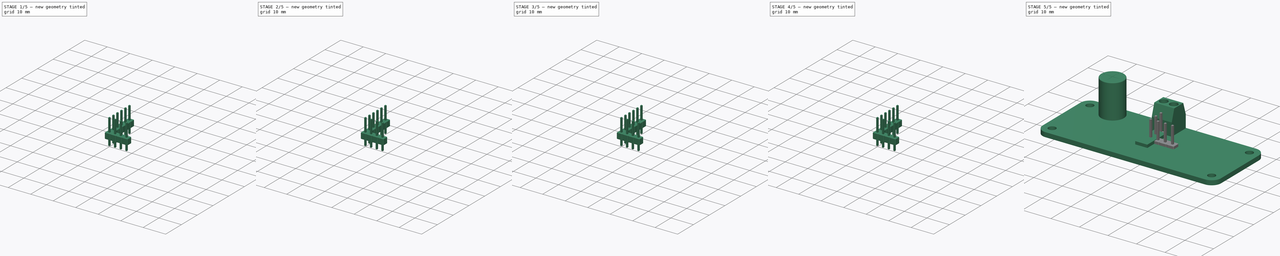
[diagram: build sequence overview — one tinted view per stage of 5, left to right]
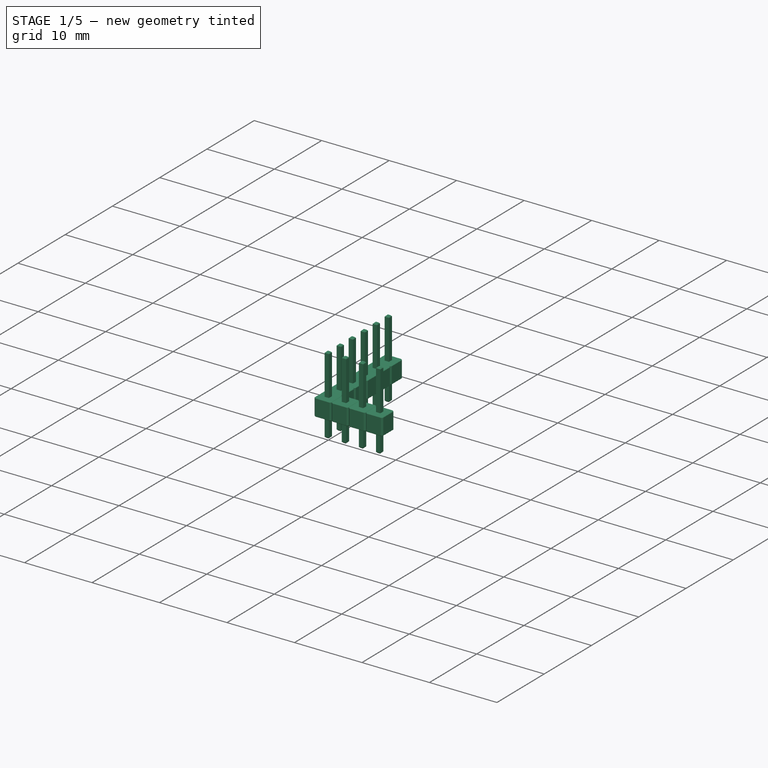
[diagram: stage 1 of 5 — iso view after this stage's code; geometry added in this stage tinted green]
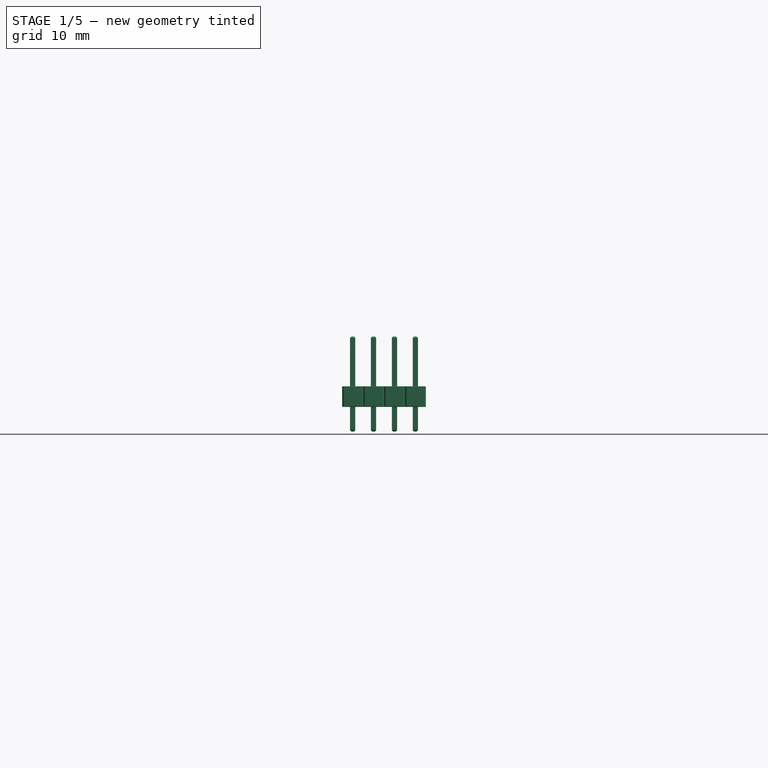
[diagram: stage 1 of 5 — front view after this stage's code; geometry added in this stage tinted green]
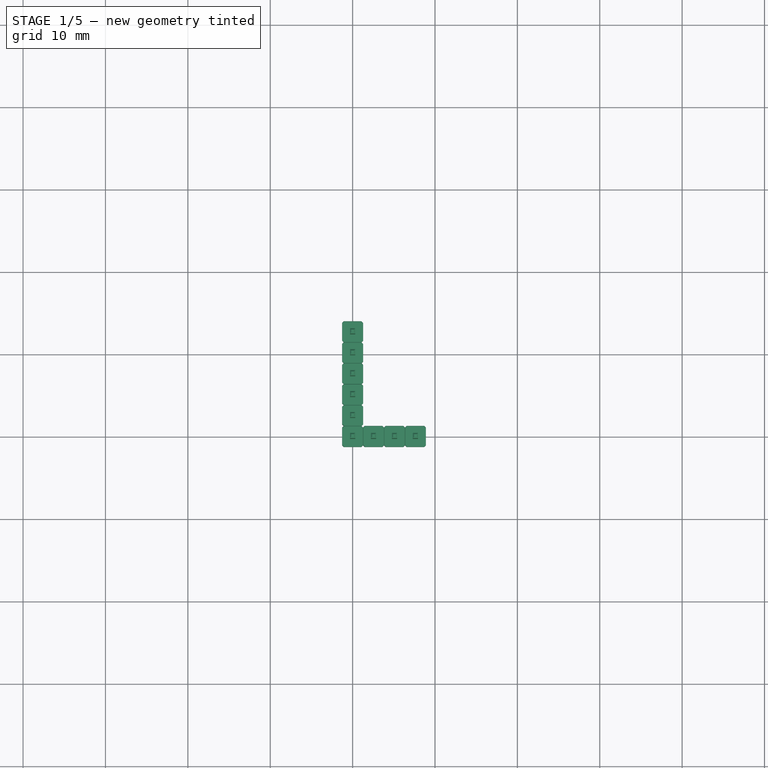
[diagram: stage 1 of 5 — top view after this stage's code; geometry added in this stage tinted green]
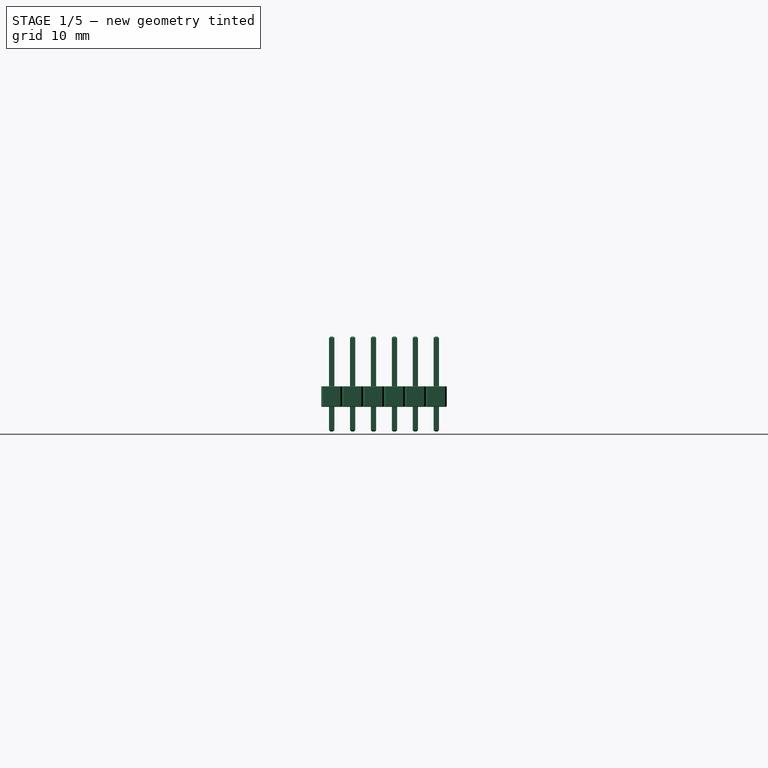
[diagram: stage 1 of 5 — right view after this stage's code; geometry added in this stage tinted green]
FCSTD DOCUMENT  (FreeCAD 0.18R4 (GitTag))
Label: PCA9685 Servorboard
License: CreativeCommons Attribution-NonCommercial
LicenseURL: http://creativecommons.org/licenses/by-nc/4.0/
objects: PartDesign::Chamfer×39, Sketcher::SketchObject×36, PartDesign::Pad×31, PartDesign::Body×31, Part::FeaturePython×26, App::Part×19, PartDesign::Pocket×5, PartDesign::ShapeBinder×4, PartDesign::Fillet×3
note: 211 computed .brp shape members not serialized (recipe doc carries the construction recipe); baked Part::Feature solids carry a one-line shape summary decoded from their .brp

FEATURE [App::Part] Part019  label="PWM Pin Header Black002"
  Group = -> [Body053,Body052,Array017,Array016]
  Origin = -> Origin073
  Placement = pos=(3.81,-11.45,1.6) rot=(0,0,1;0rad)
FEATURE [App::Part] Part020  label="PWM Pin Header Red002"
  Group = -> [Body051,Body050,Array015,Array014]
  Origin = -> Origin076
  Placement = pos=(3.81,-8.91,1.6) rot=(0,0,1;0rad)
FEATURE [App::Part] Part021  label="PWM Pins #3"
  Group = -> [Part019,Part020,Part018]
  Origin = -> Origin072
  Placement = pos=(3.6e-15,0,0) rot=(0,0,1;0rad)
FEATURE [Sketcher::SketchObject] Sketch227
  MapMode = 5
  Placement = pos=(0,0,0) rot=(1,0,0;1.5708rad)
  Support = -> [XZ_Plane086]
  sketch-geometry (4):
    g0: LineSegment StartX=-0.32 StartY=-3 StartZ=0 EndX=0.32 EndY=-3 EndZ=0
    g1: LineSegment StartX=0.32 StartY=-3 StartZ=0 EndX=0.32 EndY=8.54 EndZ=0
    g2: LineSegment StartX=0.32 StartY=8.54 StartZ=0 EndX=-0.32 EndY=8.54 EndZ=0
    g3: LineSegment StartX=-0.32 StartY=8.54 StartZ=0 EndX=-0.32 EndY=-3 EndZ=0
  constraints (11):
    c: Coincident(g0,g1)
    c: Coincident(g1,g2)
    c: Coincident(g2,g3)
    c: Coincident(g3,g0)
    c: Horizontal(g0)
    c: Vertical(g1)
    c: Vertical(g3)
    c: DistanceY(g-1,g1) = 8.54
    c: DistanceY(g0,g-1) = 3
    c: Symmetric(g2,g1,g-2)
    c: DistanceX(g2,g2) = 0.64
FEATURE [Sketcher::SketchObject] Sketch228
  MapMode = 5
  Support = -> [XY_Plane082]
  sketch-geometry (4):
    g0: LineSegment StartX=-1.27 StartY=-1.27 StartZ=0 EndX=1.27 EndY=-1.27 EndZ=0
    g1: LineSegment StartX=1.27 StartY=-1.27 StartZ=0 EndX=1.27 EndY=1.27 EndZ=0
    g2: LineSegment StartX=1.27 StartY=1.27 StartZ=0 EndX=-1.27 EndY=1.27 EndZ=0
    g3: LineSegment StartX=-1.27 StartY=1.27 StartZ=0 EndX=-1.27 EndY=-1.27 EndZ=0
  constraints (10):
    c: Coincident(g0,g1)
    c: Coincident(g1,g2)
    c: Coincident(g2,g3)
    c: Coincident(g3,g0)
    c: Horizontal(g0)
    c: Vertical(g3)
    c: Symmetric(g1,g2,g-2)
    c: Symmetric(g0,g1,g-1)
    c: Equal(g3,g2)
    c: DistanceX(g2,g2) = 2.54
FEATURE [Sketcher::SketchObject] Sketch229
  MapMode = 5
  Support = -> [XY_Plane087]
  sketch-geometry (4):
    g0: LineSegment StartX=-1.27 StartY=-1.27 StartZ=0 EndX=1.27 EndY=-1.27 EndZ=0
    g1: LineSegment StartX=1.27 StartY=-1.27 StartZ=0 EndX=1.27 EndY=1.27 EndZ=0
    g2: LineSegment StartX=1.27 StartY=1.27 StartZ=0 EndX=-1.27 EndY=1.27 EndZ=0
    g3: LineSegment StartX=-1.27 StartY=1.27 StartZ=0 EndX=-1.27 EndY=-1.27 EndZ=0
  constraints (10):
    c: Coincident(g0,g1)
    c: Coincident(g1,g2)
    c: Coincident(g2,g3)
    c: Coincident(g3,g0)
    c: Horizontal(g0)
    c: Vertical(g3)
    c: Symmetric(g1,g2,g-2)
    c: Symmetric(g0,g1,g-1)
    c: Equal(g3,g2)
    c: DistanceX(g2,g2) = 2.54
FEATURE [Sketcher::SketchObject] Sketch230
  MapMode = 5
  Placement = pos=(0,0,0) rot=(1,0,0;1.5708rad)
  Support = -> [XZ_Plane085]
  sketch-geometry (4):
    g0: LineSegment StartX=-0.32 StartY=-3 StartZ=0 EndX=0.32 EndY=-3 EndZ=0
    g1: LineSegment StartX=0.32 StartY=-3 StartZ=0 EndX=0.32 EndY=8.54 EndZ=0
    g2: LineSegment StartX=0.32 StartY=8.54 StartZ=0 EndX=-0.32 EndY=8.54 EndZ=0
    g3: LineSegment StartX=-0.32 StartY=8.54 StartZ=0 EndX=-0.32 EndY=-3 EndZ=0
  constraints (11):
    c: Coincident(g0,g1)
    c: Coincident(g1,g2)
    c: Coincident(g2,g3)
    c: Coincident(g3,g0)
    c: Horizontal(g0)
    c: Vertical(g1)
    c: Vertical(g3)
    c: DistanceY(g-1,g1) = 8.54
    c: DistanceY(g0,g-1) = 3
    c: Symmetric(g2,g1,g-2)
    c: DistanceX(g2,g2) = 0.64
FEATURE [PartDesign::Pad] Pad082
  Length = 0.32
  Length2 = 0.32
  Placement = pos=(0,0,0) rot=(1,0,0;1.5708rad)
  Profile = -> Sketch227
  Type = 4
FEATURE [PartDesign::Chamfer] Chamfer046
  Base = -> Pad082 [Face3,Face1]
  BaseFeature = -> Pad082
  Placement = pos=(0,0,0) rot=(1,0,0;1.5708rad)
  Size = 0.16
FEATURE [PartDesign::Pad] Pad083
  Length = 2.5
  Length2 = 100
  Profile = -> Sketch228
  Type = 0
FEATURE [PartDesign::Chamfer] Chamfer043
  Base = -> Pad083 [Edge2,Edge1,Edge5,Edge8]
  BaseFeature = -> Pad083
  Size = 0.2
FEATURE [PartDesign::Chamfer] Chamfer045
  Base = -> Chamfer043 [Face5,Face2]
  BaseFeature = -> Chamfer043
  Size = 0.05
FEATURE [PartDesign::Pad] Pad084
  Length = 2.5
  Length2 = 100
  Profile = -> Sketch229
  Type = 0
FEATURE [PartDesign::Chamfer] Chamfer042
  Base = -> Pad084 [Edge2,Edge1,Edge5,Edge8]
  BaseFeature = -> Pad084
  Size = 0.2
FEATURE [PartDesign::Chamfer] Chamfer044
  Base = -> Chamfer042 [Face5,Face2]
  BaseFeature = -> Chamfer042
  Size = 0.05
FEATURE [PartDesign::Pad] Pad086
  Length = 0.32
  Length2 = 0.32
  Placement = pos=(0,0,0) rot=(1,0,0;1.5708rad)
  Profile = -> Sketch230
  Type = 4
FEATURE [PartDesign::Chamfer] Chamfer047
  Base = -> Pad086 [Face3,Face1]
  BaseFeature = -> Pad086
  Placement = pos=(0,0,0) rot=(1,0,0;1.5708rad)
  Size = 0.16
FEATURE [App::Part] Part022  label="PWM Pin Header Yellow003"
  Group = -> [Body055,Body054,Array019,Array018]
  Origin = -> Origin089
  Placement = pos=(3.81,-6.37,1.6) rot=(0,0,1;0rad)
FEATURE [PartDesign::Body] Body056  label="Pin Header Pin012"
  Group = -> [Sketch227,Pad082,Chamfer046]
  Origin = -> Origin087
  Tip = -> Chamfer046
FEATURE [Part::FeaturePython] Array020  # Draft array (typed FeaturePython)
  Angle = 360
  ArrayType = 0
  Axis = (0,0,1)
  Base = -> Body056
  Center = (0,0,0)
  Fuse = false
  IntervalAxis = (0,0,0)
  IntervalX = (2.54,0,0)
  IntervalY = (0,1,0)
  IntervalZ = (0,0,1)
  NumberPolar = 1
  NumberX = 4
  NumberY = 1
  NumberZ = 1
FEATURE [PartDesign::Body] Body057  label="Pin Header Block012"
  Group = -> [Sketch228,Pad083,Chamfer043,Chamfer045]
  Origin = -> Origin091
  Tip = -> Chamfer045
FEATURE [Part::FeaturePython] Array021  # Draft array (typed FeaturePython)
  Angle = 360
  ArrayType = 0
  Axis = (0,0,1)
  Base = -> Body057
  Center = (0,0,0)
  Fuse = false
  IntervalAxis = (0,0,0)
  IntervalX = (2.54,0,0)
  IntervalY = (0,1,0)
  IntervalZ = (0,0,1)
  NumberPolar = 1
  NumberX = 4
  NumberY = 1
  NumberZ = 1
FEATURE [PartDesign::Body] Body058  label="Pin Header Pin013"
  Group = -> [Sketch230,Pad086,Chamfer047]
  Origin = -> Origin085
  Tip = -> Chamfer047
FEATURE [Part::FeaturePython] Array022  # Draft array (typed FeaturePython)
  Angle = 360
  ArrayType = 0
  Axis = (0,0,1)
  Base = -> Body058
  Center = (0,0,0)
  Fuse = false
  IntervalAxis = (0,0,0)
  IntervalX = (2.54,0,0)
  IntervalY = (0,1,0)
  IntervalZ = (0,0,1)
  NumberPolar = 1
  NumberX = 4
  NumberY = 1
  NumberZ = 1
FEATURE [PartDesign::Body] Body059  label="Pin Header Block013"
  Group = -> [Sketch229,Pad084,Chamfer042,Chamfer044]
  Origin = -> Origin084
  Tip = -> Chamfer044
FEATURE [Part::FeaturePython] Array023  # Draft array (typed FeaturePython)
  Angle = 360
  ArrayType = 0
  Axis = (0,0,1)
  Base = -> Body059
  Center = (0,0,0)
  Fuse = false
  IntervalAxis = (0,0,0)
  IntervalX = (2.54,0,0)
  IntervalY = (0,1,0)
  IntervalZ = (0,0,1)
  NumberPolar = 1
  NumberX = 4
  NumberY = 1
  NumberZ = 1
FEATURE [App::Part] Part023  label="PWM Pin Header Black003"
  Group = -> [Body059,Body058,Array023,Array022]
  Origin = -> Origin083
  Placement = pos=(3.81,-11.45,1.6) rot=(0,0,1;0rad)
FEATURE [App::Part] Part024  label="PWM Pin Header Red003"
  Group = -> [Body057,Body056,Array021,Array020]
  Origin = -> Origin086
  Placement = pos=(3.81,-8.91,1.6) rot=(0,0,1;0rad)
FEATURE [App::Part] Part025  label="PWM Pins #4"
  Group = -> [Part023,Part024,Part022]
  Origin = -> Origin082
  Placement = pos=(12.7,0,0) rot=(0,0,1;0rad)
FEATURE [Sketcher::SketchObject] Sketch233
  MapMode = 5
  Support = -> [XY_Plane092]
  sketch-geometry (4):
    g0: LineSegment StartX=-1.27 StartY=-1.27 StartZ=0 EndX=1.27 EndY=-1.27 EndZ=0
    g1: LineSegment StartX=1.27 StartY=-1.27 StartZ=0 EndX=1.27 EndY=1.27 EndZ=0
    g2: LineSegment StartX=1.27 StartY=1.27 StartZ=0 EndX=-1.27 EndY=1.27 EndZ=0
    g3: LineSegment StartX=-1.27 StartY=1.27 StartZ=0 EndX=-1.27 EndY=-1.27 EndZ=0
  constraints (10):
    c: Coincident(g0,g1)
    c: Coincident(g1,g2)
    c: Coincident(g2,g3)
    c: Coincident(g3,g0)
    c: Horizontal(g0)
    c: Vertical(g3)
    c: Symmetric(g1,g2,g-2)
    c: Symmetric(g0,g1,g-1)
    c: Equal(g3,g2)
    c: DistanceX(g2,g2) = 2.54
FEATURE [Sketcher::SketchObject] Sketch234
  MapMode = 5
  Placement = pos=(0,0,0) rot=(1,0,0;1.5708rad)
  Support = -> [XZ_Plane092]
  sketch-geometry (4):
    g0: LineSegment StartX=-0.32 StartY=-3 StartZ=0 EndX=0.32 EndY=-3 EndZ=0
    g1: LineSegment StartX=0.32 StartY=-3 StartZ=0 EndX=0.32 EndY=8.54 EndZ=0
    g2: LineSegment StartX=0.32 StartY=8.54 StartZ=0 EndX=-0.32 EndY=8.54 EndZ=0
    g3: LineSegment StartX=-0.32 StartY=8.54 StartZ=0 EndX=-0.32 EndY=-3 EndZ=0
  constraints (11):
    c: Coincident(g0,g1)
    c: Coincident(g1,g2)
    c: Coincident(g2,g3)
    c: Coincident(g3,g0)
    c: Horizontal(g0)
    c: Vertical(g1)
    c: Vertical(g3)
    c: DistanceY(g-1,g1) = 8.54
    c: DistanceY(g0,g-1) = 3
    c: Symmetric(g2,g1,g-2)
    c: DistanceX(g2,g2) = 0.64
FEATURE [PartDesign::Pad] Pad088
  Length = 2.5
  Length2 = 100
  Profile = -> Sketch233
  Type = 0
FEATURE [PartDesign::Pad] Pad089
  Length = 0.32
  Length2 = 0.32
  Placement = pos=(0,0,0) rot=(1,0,0;1.5708rad)
  Profile = -> Sketch234
  Type = 4
FEATURE [PartDesign::Chamfer] Chamfer052
  Base = -> Pad088 [Edge2,Edge1,Edge5,Edge8]
  BaseFeature = -> Pad088
  Size = 0.2
FEATURE [PartDesign::Chamfer] Chamfer051
  Base = -> Chamfer052 [Face5,Face2]
  BaseFeature = -> Chamfer052
  Size = 0.05
FEATURE [PartDesign::Body] Body061  label="Pin Header Block014"
  Group = -> [Sketch233,Pad088,Chamfer052,Chamfer051]
  Origin = -> Origin094
  Tip = -> Chamfer051
FEATURE [PartDesign::Chamfer] Chamfer053
  Base = -> Pad089 [Face3,Face1]
  BaseFeature = -> Pad089
  Placement = pos=(0,0,0) rot=(1,0,0;1.5708rad)
  Size = 0.16
FEATURE [PartDesign::Body] Body060  label="Pin Header Pin014"
  Group = -> [Sketch234,Pad089,Chamfer053]
  Origin = -> Origin093
  Tip = -> Chamfer053
FEATURE [Part::FeaturePython] Array024  # Draft array (typed FeaturePython)
  Angle = 360
  ArrayType = 0
  Axis = (0,0,1)
  Base = -> Body061
  Center = (0,0,0)
  Fuse = false
  IntervalAxis = (0,0,0)
  IntervalX = (1,0,0)
  IntervalY = (0,2.54,0)
  IntervalZ = (0,0,1)
  NumberPolar = 1
  NumberX = 1
  NumberY = 6
  NumberZ = 1
FEATURE [Part::FeaturePython] Array025  # Draft array (typed FeaturePython)
  Angle = 360
  ArrayType = 0
  Axis = (0,0,1)
  Base = -> Body060
  Center = (0,0,0)
  Fuse = false
  IntervalAxis = (0,0,0)
  IntervalX = (1,0,0)
  IntervalY = (0,2.54,0)
  IntervalZ = (0,0,1)
  NumberPolar = 1
  NumberX = 1
  NumberY = 6
  NumberZ = 1
FEATURE [App::Part] Part026  label="Connector Pin Header"
  Group = -> [Body061,Body060,Array024,Array025]
  Origin = -> Origin092
  Placement = pos=(-29.21,-6.35,1.6) rot=(0,0,1;0rad)
FEATURE [App::Part] Part  label="PCA9685 PWM Board"
  Group = -> [Body,Body001,Body002,Part001,Part002,Part017,Part021,Part025,Part026]
  Origin = -> Origin
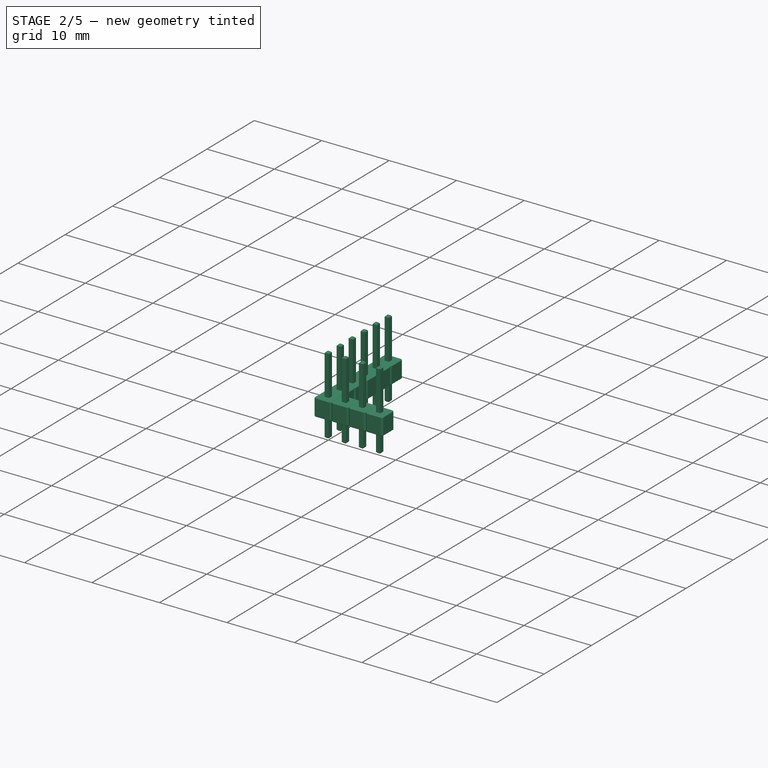
[diagram: stage 2 of 5 — iso view after this stage's code; geometry added in this stage tinted green]
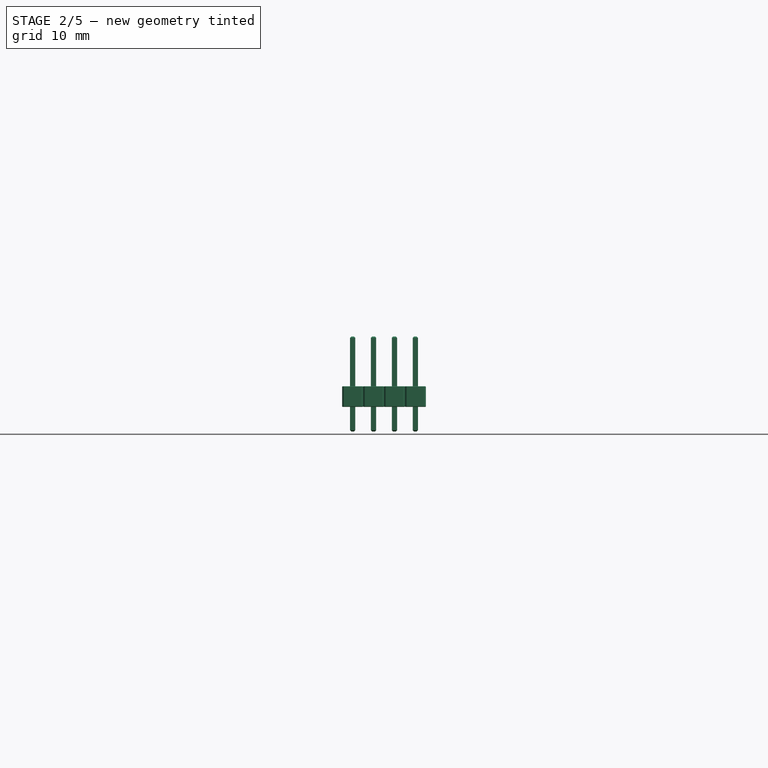
[diagram: stage 2 of 5 — front view after this stage's code; geometry added in this stage tinted green]
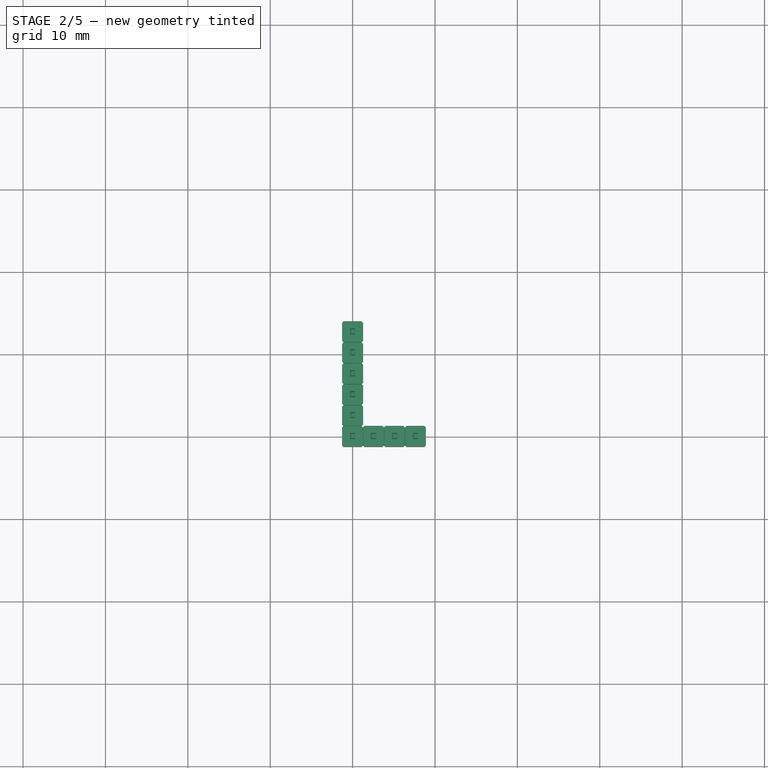
[diagram: stage 2 of 5 — top view after this stage's code; geometry added in this stage tinted green]
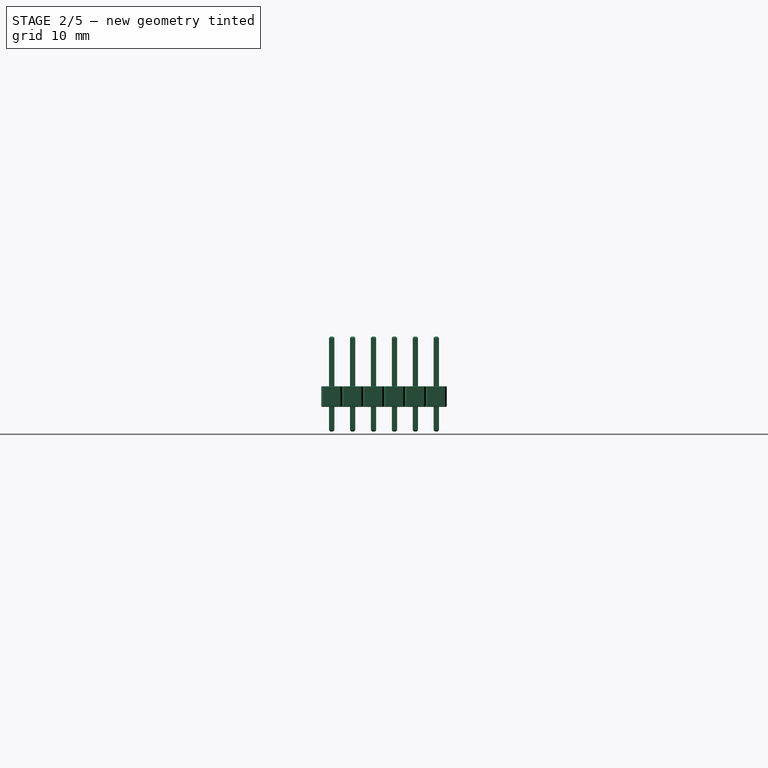
[diagram: stage 2 of 5 — right view after this stage's code; geometry added in this stage tinted green]
FEATURE [App::Part] Part015  label="PWM Pin Header Black001"
  Group = -> [Body047,Body046,Array011,Array010]
  Origin = -> Origin063
  Placement = pos=(3.81,-11.45,1.6) rot=(0,0,1;0rad)
FEATURE [App::Part] Part016  label="PWM Pin Header Red001"
  Group = -> [Body045,Body044,Array009,Array008]
  Origin = -> Origin066
  Placement = pos=(3.81,-8.91,1.6) rot=(0,0,1;0rad)
FEATURE [App::Part] Part017  label="PWM Pins #2"
  Group = -> [Part015,Part016,Part014]
  Origin = -> Origin062
  Placement = pos=(-15.24,0,0) rot=(0,0,1;0rad)
FEATURE [Sketcher::SketchObject] Sketch221
  MapMode = 5
  Placement = pos=(0,0,0) rot=(1,0,0;1.5708rad)
  Support = -> [XZ_Plane076]
  sketch-geometry (4):
    g0: LineSegment StartX=-0.32 StartY=-3 StartZ=0 EndX=0.32 EndY=-3 EndZ=0
    g1: LineSegment StartX=0.32 StartY=-3 StartZ=0 EndX=0.32 EndY=8.54 EndZ=0
    g2: LineSegment StartX=0.32 StartY=8.54 StartZ=0 EndX=-0.32 EndY=8.54 EndZ=0
    g3: LineSegment StartX=-0.32 StartY=8.54 StartZ=0 EndX=-0.32 EndY=-3 EndZ=0
  constraints (11):
    c: Coincident(g0,g1)
    c: Coincident(g1,g2)
    c: Coincident(g2,g3)
    c: Coincident(g3,g0)
    c: Horizontal(g0)
    c: Vertical(g1)
    c: Vertical(g3)
    c: DistanceY(g-1,g1) = 8.54
    c: DistanceY(g0,g-1) = 3
    c: Symmetric(g2,g1,g-2)
    c: DistanceX(g2,g2) = 0.64
FEATURE [Sketcher::SketchObject] Sketch222
  MapMode = 5
  Support = -> [XY_Plane072]
  sketch-geometry (4):
    g0: LineSegment StartX=-1.27 StartY=-1.27 StartZ=0 EndX=1.27 EndY=-1.27 EndZ=0
    g1: LineSegment StartX=1.27 StartY=-1.27 StartZ=0 EndX=1.27 EndY=1.27 EndZ=0
    g2: LineSegment StartX=1.27 StartY=1.27 StartZ=0 EndX=-1.27 EndY=1.27 EndZ=0
    g3: LineSegment StartX=-1.27 StartY=1.27 StartZ=0 EndX=-1.27 EndY=-1.27 EndZ=0
  constraints (10):
    c: Coincident(g0,g1)
    c: Coincident(g1,g2)
    c: Coincident(g2,g3)
    c: Coincident(g3,g0)
    c: Horizontal(g0)
    c: Vertical(g3)
    c: Symmetric(g1,g2,g-2)
    c: Symmetric(g0,g1,g-1)
    c: Equal(g3,g2)
    c: DistanceX(g2,g2) = 2.54
FEATURE [Sketcher::SketchObject] Sketch223
  MapMode = 5
  Support = -> [XY_Plane077]
  sketch-geometry (4):
    g0: LineSegment StartX=-1.27 StartY=-1.27 StartZ=0 EndX=1.27 EndY=-1.27 EndZ=0
    g1: LineSegment StartX=1.27 StartY=-1.27 StartZ=0 EndX=1.27 EndY=1.27 EndZ=0
    g2: LineSegment StartX=1.27 StartY=1.27 StartZ=0 EndX=-1.27 EndY=1.27 EndZ=0
    g3: LineSegment StartX=-1.27 StartY=1.27 StartZ=0 EndX=-1.27 EndY=-1.27 EndZ=0
  constraints (10):
    c: Coincident(g0,g1)
    c: Coincident(g1,g2)
    c: Coincident(g2,g3)
    c: Coincident(g3,g0)
    c: Horizontal(g0)
    c: Vertical(g3)
    c: Symmetric(g1,g2,g-2)
    c: Symmetric(g0,g1,g-1)
    c: Equal(g3,g2)
    c: DistanceX(g2,g2) = 2.54
FEATURE [Sketcher::SketchObject] Sketch224
  MapMode = 5
  Placement = pos=(0,0,0) rot=(1,0,0;1.5708rad)
  Support = -> [XZ_Plane075]
  sketch-geometry (4):
    g0: LineSegment StartX=-0.32 StartY=-3 StartZ=0 EndX=0.32 EndY=-3 EndZ=0
    g1: LineSegment StartX=0.32 StartY=-3 StartZ=0 EndX=0.32 EndY=8.54 EndZ=0
    g2: LineSegment StartX=0.32 StartY=8.54 StartZ=0 EndX=-0.32 EndY=8.54 EndZ=0
    g3: LineSegment StartX=-0.32 StartY=8.54 StartZ=0 EndX=-0.32 EndY=-3 EndZ=0
  constraints (11):
    c: Coincident(g0,g1)
    c: Coincident(g1,g2)
    c: Coincident(g2,g3)
    c: Coincident(g3,g0)
    c: Horizontal(g0)
    c: Vertical(g1)
    c: Vertical(g3)
    c: DistanceY(g-1,g1) = 8.54
    c: DistanceY(g0,g-1) = 3
    c: Symmetric(g2,g1,g-2)
    c: DistanceX(g2,g2) = 0.64
FEATURE [PartDesign::Pad] Pad076
  Length = 0.32
  Length2 = 0.32
  Placement = pos=(0,0,0) rot=(1,0,0;1.5708rad)
  Profile = -> Sketch221
  Type = 4
FEATURE [PartDesign::Chamfer] Chamfer037
  Base = -> Pad076 [Face3,Face1]
  BaseFeature = -> Pad076
  Placement = pos=(0,0,0) rot=(1,0,0;1.5708rad)
  Size = 0.16
FEATURE [PartDesign::Pad] Pad077
  Length = 2.5
  Length2 = 100
  Profile = -> Sketch222
  Type = 0
FEATURE [PartDesign::Chamfer] Chamfer034
  Base = -> Pad077 [Edge2,Edge1,Edge5,Edge8]
  BaseFeature = -> Pad077
  Size = 0.2
FEATURE [PartDesign::Chamfer] Chamfer036
  Base = -> Chamfer034 [Face5,Face2]
  BaseFeature = -> Chamfer034
  Size = 0.05
FEATURE [PartDesign::Pad] Pad078
  Length = 2.5
  Length2 = 100
  Profile = -> Sketch223
  Type = 0
FEATURE [PartDesign::Chamfer] Chamfer033
  Base = -> Pad078 [Edge2,Edge1,Edge5,Edge8]
  BaseFeature = -> Pad078
  Size = 0.2
FEATURE [PartDesign::Chamfer] Chamfer035
  Base = -> Chamfer033 [Face5,Face2]
  BaseFeature = -> Chamfer033
  Size = 0.05
FEATURE [PartDesign::Pad] Pad080
  Length = 0.32
  Length2 = 0.32
  Placement = pos=(0,0,0) rot=(1,0,0;1.5708rad)
  Profile = -> Sketch224
  Type = 4
FEATURE [PartDesign::Chamfer] Chamfer038
  Base = -> Pad080 [Face3,Face1]
  BaseFeature = -> Pad080
  Placement = pos=(0,0,0) rot=(1,0,0;1.5708rad)
  Size = 0.16
FEATURE [App::Part] Part018  label="PWM Pin Header Yellow002"
  Group = -> [Body049,Body048,Array013,Array012]
  Origin = -> Origin079
  Placement = pos=(3.81,-6.37,1.6) rot=(0,0,1;0rad)
FEATURE [PartDesign::Body] Body050  label="Pin Header Pin009"
  Group = -> [Sketch221,Pad076,Chamfer037]
  Origin = -> Origin077
  Tip = -> Chamfer037
FEATURE [Part::FeaturePython] Array014  # Draft array (typed FeaturePython)
  Angle = 360
  ArrayType = 0
  Axis = (0,0,1)
  Base = -> Body050
  Center = (0,0,0)
  Fuse = false
  IntervalAxis = (0,0,0)
  IntervalX = (2.54,0,0)
  IntervalY = (0,1,0)
  IntervalZ = (0,0,1)
  NumberPolar = 1
  NumberX = 4
  NumberY = 1
  NumberZ = 1
FEATURE [PartDesign::Body] Body051  label="Pin Header Block009"
  Group = -> [Sketch222,Pad077,Chamfer034,Chamfer036]
  Origin = -> Origin081
  Tip = -> Chamfer036
FEATURE [Part::FeaturePython] Array015  # Draft array (typed FeaturePython)
  Angle = 360
  ArrayType = 0
  Axis = (0,0,1)
  Base = -> Body051
  Center = (0,0,0)
  Fuse = false
  IntervalAxis = (0,0,0)
  IntervalX = (2.54,0,0)
  IntervalY = (0,1,0)
  IntervalZ = (0,0,1)
  NumberPolar = 1
  NumberX = 4
  NumberY = 1
  NumberZ = 1
FEATURE [PartDesign::Body] Body052  label="Pin Header Pin010"
  Group = -> [Sketch224,Pad080,Chamfer038]
  Origin = -> Origin075
  Tip = -> Chamfer038
FEATURE [Part::FeaturePython] Array016  # Draft array (typed FeaturePython)
  Angle = 360
  ArrayType = 0
  Axis = (0,0,1)
  Base = -> Body052
  Center = (0,0,0)
  Fuse = false
  IntervalAxis = (0,0,0)
  IntervalX = (2.54,0,0)
  IntervalY = (0,1,0)
  IntervalZ = (0,0,1)
  NumberPolar = 1
  NumberX = 4
  NumberY = 1
  NumberZ = 1
FEATURE [PartDesign::Body] Body053  label="Pin Header Block010"
  Group = -> [Sketch223,Pad078,Chamfer033,Chamfer035]
  Origin = -> Origin074
  Tip = -> Chamfer035
FEATURE [Part::FeaturePython] Array017  # Draft array (typed FeaturePython)
  Angle = 360
  ArrayType = 0
  Axis = (0,0,1)
  Base = -> Body053
  Center = (0,0,0)
  Fuse = false
  IntervalAxis = (0,0,0)
  IntervalX = (2.54,0,0)
  IntervalY = (0,1,0)
  IntervalZ = (0,0,1)
  NumberPolar = 1
  NumberX = 4
  NumberY = 1
  NumberZ = 1
FEATURE [Sketcher::SketchObject] Sketch231
  MapMode = 5
  Placement = pos=(0,0,0) rot=(1,0,0;1.5708rad)
  Support = -> [XZ_Plane090]
  sketch-geometry (4):
    g0: LineSegment StartX=-0.32 StartY=-3 StartZ=0 EndX=0.32 EndY=-3 EndZ=0
    g1: LineSegment StartX=0.32 StartY=-3 StartZ=0 EndX=0.32 EndY=8.54 EndZ=0
    g2: LineSegment StartX=0.32 StartY=8.54 StartZ=0 EndX=-0.32 EndY=8.54 EndZ=0
    g3: LineSegment StartX=-0.32 StartY=8.54 StartZ=0 EndX=-0.32 EndY=-3 EndZ=0
  constraints (11):
    c: Coincident(g0,g1)
    c: Coincident(g1,g2)
    c: Coincident(g2,g3)
    c: Coincident(g3,g0)
    c: Horizontal(g0)
    c: Vertical(g1)
    c: Vertical(g3)
    c: DistanceY(g-1,g1) = 8.54
    c: DistanceY(g0,g-1) = 3
    c: Symmetric(g2,g1,g-2)
    c: DistanceX(g2,g2) = 0.64
FEATURE [PartDesign::Pad] Pad085
  Length = 0.32
  Length2 = 0.32
  Placement = pos=(0,0,0) rot=(1,0,0;1.5708rad)
  Profile = -> Sketch231
  Type = 4
FEATURE [PartDesign::Chamfer] Chamfer048
  Base = -> Pad085 [Face3,Face1]
  BaseFeature = -> Pad085
  Placement = pos=(0,0,0) rot=(1,0,0;1.5708rad)
  Size = 0.16
FEATURE [PartDesign::Body] Body054  label="Pin Header Pin011"
  Group = -> [Sketch231,Pad085,Chamfer048]
  Origin = -> Origin088
  Tip = -> Chamfer048
FEATURE [Part::FeaturePython] Array018  # Draft array (typed FeaturePython)
  Angle = 360
  ArrayType = 0
  Axis = (0,0,1)
  Base = -> Body054
  Center = (0,0,0)
  Fuse = false
  IntervalAxis = (0,0,0)
  IntervalX = (2.54,0,0)
  IntervalY = (0,1,0)
  IntervalZ = (0,0,1)
  NumberPolar = 1
  NumberX = 4
  NumberY = 1
  NumberZ = 1
FEATURE [Sketcher::SketchObject] Sketch232
  MapMode = 5
  Support = -> [XY_Plane091]
  sketch-geometry (4):
    g0: LineSegment StartX=-1.27 StartY=-1.27 StartZ=0 EndX=1.27 EndY=-1.27 EndZ=0
    g1: LineSegment StartX=1.27 StartY=-1.27 StartZ=0 EndX=1.27 EndY=1.27 EndZ=0
    g2: LineSegment StartX=1.27 StartY=1.27 StartZ=0 EndX=-1.27 EndY=1.27 EndZ=0
    g3: LineSegment StartX=-1.27 StartY=1.27 StartZ=0 EndX=-1.27 EndY=-1.27 EndZ=0
  constraints (10):
    c: Coincident(g0,g1)
    c: Coincident(g1,g2)
    c: Coincident(g2,g3)
    c: Coincident(g3,g0)
    c: Horizontal(g0)
    c: Vertical(g3)
    c: Symmetric(g1,g2,g-2)
    c: Symmetric(g0,g1,g-1)
    c: Equal(g3,g2)
    c: DistanceX(g2,g2) = 2.54
FEATURE [PartDesign::Pad] Pad087
  Length = 2.5
  Length2 = 100
  Profile = -> Sketch232
  Type = 0
FEATURE [PartDesign::Chamfer] Chamfer050
  Base = -> Pad087 [Edge2,Edge1,Edge5,Edge8]
  BaseFeature = -> Pad087
  Size = 0.2
FEATURE [PartDesign::Chamfer] Chamfer049
  Base = -> Chamfer050 [Face5,Face2]
  BaseFeature = -> Chamfer050
  Size = 0.05
FEATURE [PartDesign::Body] Body055  label="Pin Header Block011"
  Group = -> [Sketch232,Pad087,Chamfer050,Chamfer049]
  Origin = -> Origin090
  Tip = -> Chamfer049
FEATURE [Part::FeaturePython] Array019  # Draft array (typed FeaturePython)
  Angle = 360
  ArrayType = 0
  Axis = (0,0,1)
  Base = -> Body055
  Center = (0,0,0)
  Fuse = false
  IntervalAxis = (0,0,0)
  IntervalX = (2.54,0,0)
  IntervalY = (0,1,0)
  IntervalZ = (0,0,1)
  NumberPolar = 1
  NumberX = 4
  NumberY = 1
  NumberZ = 1
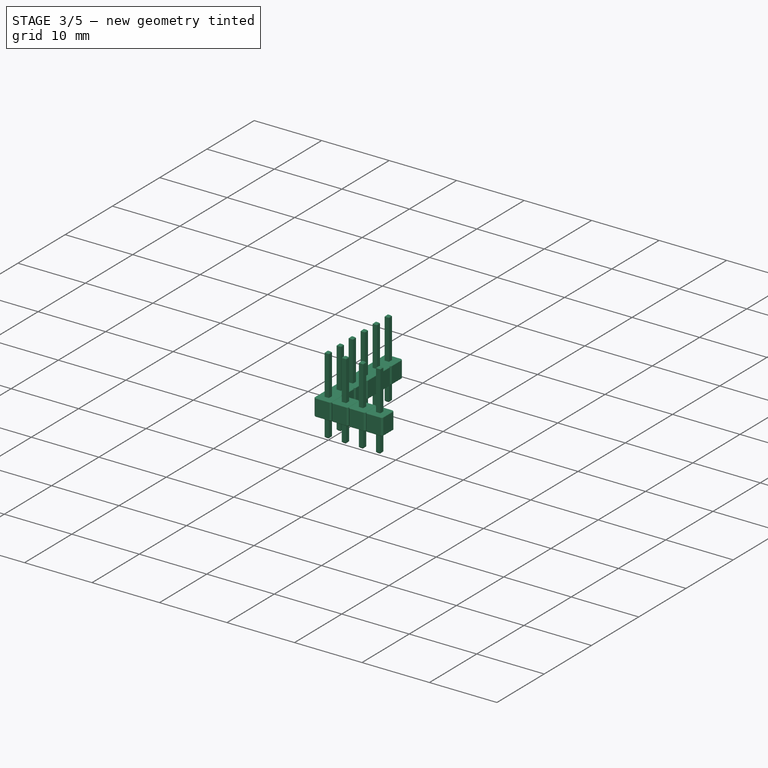
[diagram: stage 3 of 5 — iso view after this stage's code; geometry added in this stage tinted green]
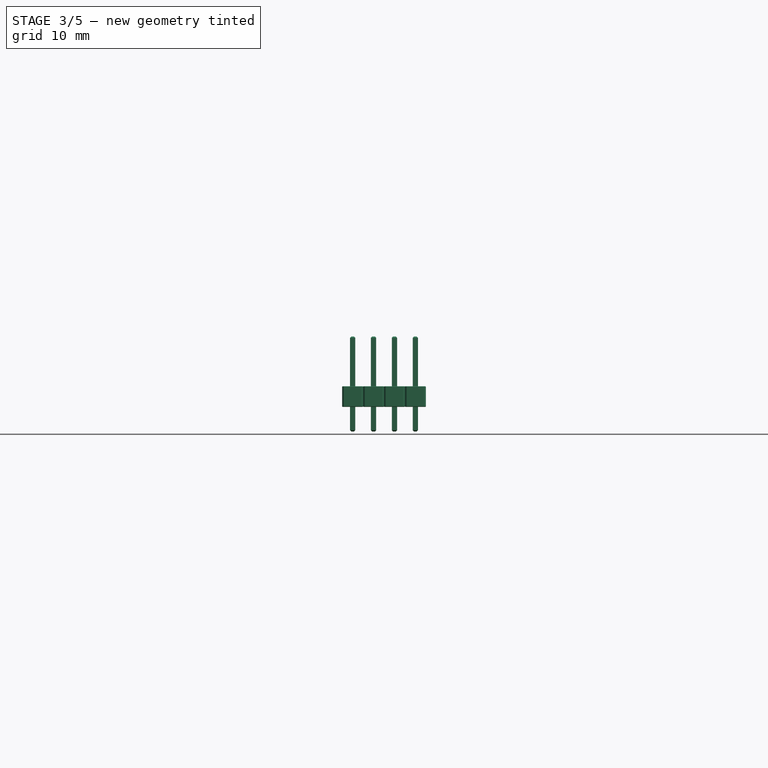
[diagram: stage 3 of 5 — front view after this stage's code; geometry added in this stage tinted green]
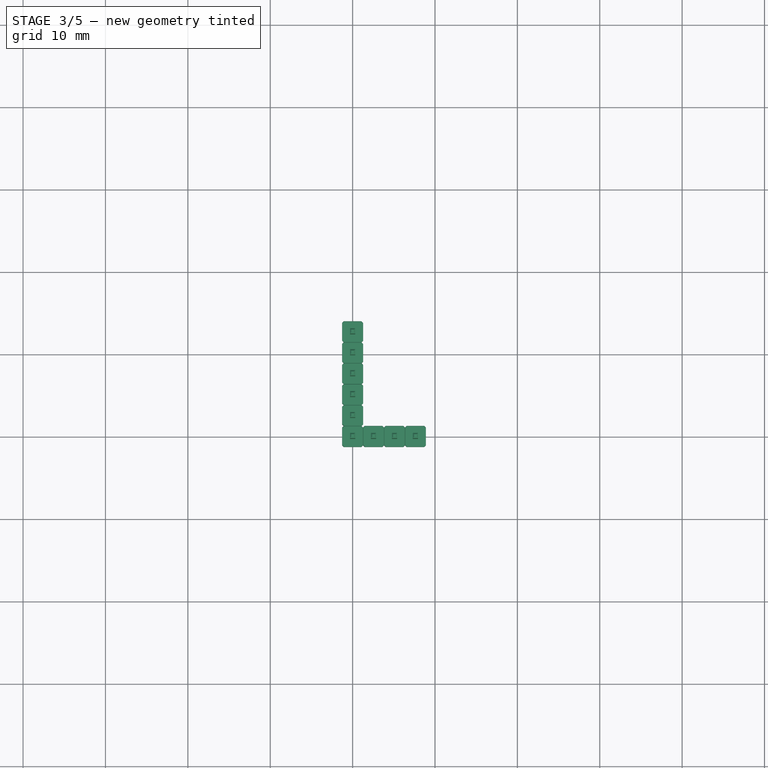
[diagram: stage 3 of 5 — top view after this stage's code; geometry added in this stage tinted green]
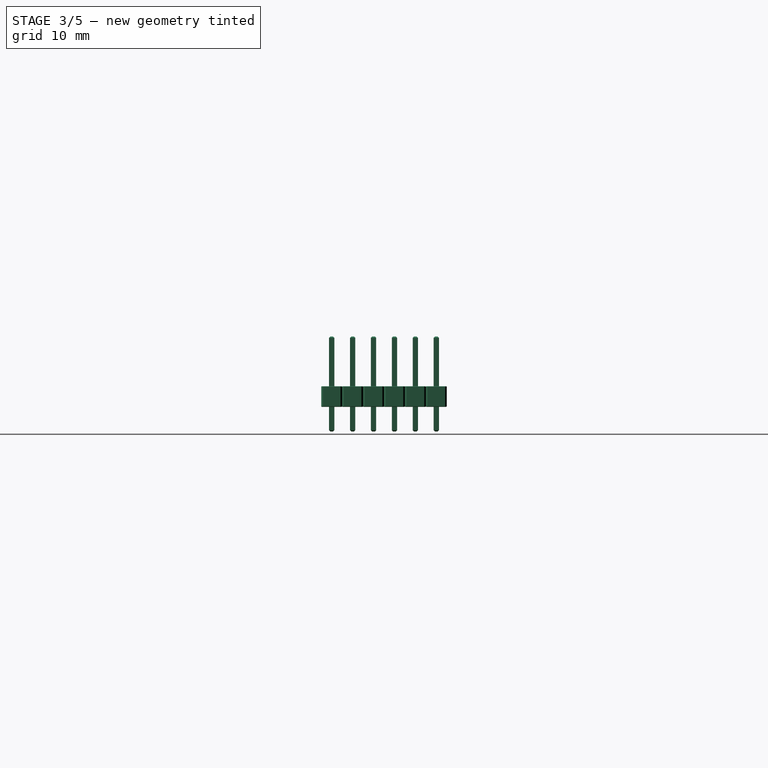
[diagram: stage 3 of 5 — right view after this stage's code; geometry added in this stage tinted green]
FEATURE [App::Part] Part013  label="PWM Pin Header Yellow"
  Group = -> [Body041,Body040,Array005,Array004]
  Origin = -> Origin059
  Placement = pos=(3.81,-6.37,1.6) rot=(0,0,1;0rad)
FEATURE [App::Part] Part002  label="PWM Pins #1"
  Group = -> [Part010,Part012,Part013]
  Origin = -> Origin007
  Placement = pos=(-27.94,0,0) rot=(0,0,1;0rad)
FEATURE [Sketcher::SketchObject] Sketch215
  MapMode = 5
  Placement = pos=(0,0,0) rot=(1,0,0;1.5708rad)
  Support = -> [XZ_Plane066]
  sketch-geometry (4):
    g0: LineSegment StartX=-0.32 StartY=-3 StartZ=0 EndX=0.32 EndY=-3 EndZ=0
    g1: LineSegment StartX=0.32 StartY=-3 StartZ=0 EndX=0.32 EndY=8.54 EndZ=0
    g2: LineSegment StartX=0.32 StartY=8.54 StartZ=0 EndX=-0.32 EndY=8.54 EndZ=0
    g3: LineSegment StartX=-0.32 StartY=8.54 StartZ=0 EndX=-0.32 EndY=-3 EndZ=0
  constraints (11):
    c: Coincident(g0,g1)
    c: Coincident(g1,g2)
    c: Coincident(g2,g3)
    c: Coincident(g3,g0)
    c: Horizontal(g0)
    c: Vertical(g1)
    c: Vertical(g3)
    c: DistanceY(g-1,g1) = 8.54
    c: DistanceY(g0,g-1) = 3
    c: Symmetric(g2,g1,g-2)
    c: DistanceX(g2,g2) = 0.64
FEATURE [Sketcher::SketchObject] Sketch216
  MapMode = 5
  Support = -> [XY_Plane062]
  sketch-geometry (4):
    g0: LineSegment StartX=-1.27 StartY=-1.27 StartZ=0 EndX=1.27 EndY=-1.27 EndZ=0
    g1: LineSegment StartX=1.27 StartY=-1.27 StartZ=0 EndX=1.27 EndY=1.27 EndZ=0
    g2: LineSegment StartX=1.27 StartY=1.27 StartZ=0 EndX=-1.27 EndY=1.27 EndZ=0
    g3: LineSegment StartX=-1.27 StartY=1.27 StartZ=0 EndX=-1.27 EndY=-1.27 EndZ=0
  constraints (10):
    c: Coincident(g0,g1)
    c: Coincident(g1,g2)
    c: Coincident(g2,g3)
    c: Coincident(g3,g0)
    c: Horizontal(g0)
    c: Vertical(g3)
    c: Symmetric(g1,g2,g-2)
    c: Symmetric(g0,g1,g-1)
    c: Equal(g3,g2)
    c: DistanceX(g2,g2) = 2.54
FEATURE [Sketcher::SketchObject] Sketch217
  MapMode = 5
  Support = -> [XY_Plane067]
  sketch-geometry (4):
    g0: LineSegment StartX=-1.27 StartY=-1.27 StartZ=0 EndX=1.27 EndY=-1.27 EndZ=0
    g1: LineSegment StartX=1.27 StartY=-1.27 StartZ=0 EndX=1.27 EndY=1.27 EndZ=0
    g2: LineSegment StartX=1.27 StartY=1.27 StartZ=0 EndX=-1.27 EndY=1.27 EndZ=0
    g3: LineSegment StartX=-1.27 StartY=1.27 StartZ=0 EndX=-1.27 EndY=-1.27 EndZ=0
  constraints (10):
    c: Coincident(g0,g1)
    c: Coincident(g1,g2)
    c: Coincident(g2,g3)
    c: Coincident(g3,g0)
    c: Horizontal(g0)
    c: Vertical(g3)
    c: Symmetric(g1,g2,g-2)
    c: Symmetric(g0,g1,g-1)
    c: Equal(g3,g2)
    c: DistanceX(g2,g2) = 2.54
FEATURE [Sketcher::SketchObject] Sketch218
  MapMode = 5
  Placement = pos=(0,0,0) rot=(1,0,0;1.5708rad)
  Support = -> [XZ_Plane065]
  sketch-geometry (4):
    g0: LineSegment StartX=-0.32 StartY=-3 StartZ=0 EndX=0.32 EndY=-3 EndZ=0
    g1: LineSegment StartX=0.32 StartY=-3 StartZ=0 EndX=0.32 EndY=8.54 EndZ=0
    g2: LineSegment StartX=0.32 StartY=8.54 StartZ=0 EndX=-0.32 EndY=8.54 EndZ=0
    g3: LineSegment StartX=-0.32 StartY=8.54 StartZ=0 EndX=-0.32 EndY=-3 EndZ=0
  constraints (11):
    c: Coincident(g0,g1)
    c: Coincident(g1,g2)
    c: Coincident(g2,g3)
    c: Coincident(g3,g0)
    c: Horizontal(g0)
    c: Vertical(g1)
    c: Vertical(g3)
    c: DistanceY(g-1,g1) = 8.54
    c: DistanceY(g0,g-1) = 3
    c: Symmetric(g2,g1,g-2)
    c: DistanceX(g2,g2) = 0.64
FEATURE [PartDesign::Pad] Pad070
  Length = 0.32
  Length2 = 0.32
  Placement = pos=(0,0,0) rot=(1,0,0;1.5708rad)
  Profile = -> Sketch215
  Type = 4
FEATURE [PartDesign::Chamfer] Chamfer028
  Base = -> Pad070 [Face3,Face1]
  BaseFeature = -> Pad070
  Placement = pos=(0,0,0) rot=(1,0,0;1.5708rad)
  Size = 0.16
FEATURE [PartDesign::Pad] Pad071
  Length = 2.5
  Length2 = 100
  Profile = -> Sketch216
  Type = 0
FEATURE [PartDesign::Chamfer] Chamfer025
  Base = -> Pad071 [Edge2,Edge1,Edge5,Edge8]
  BaseFeature = -> Pad071
  Size = 0.2
FEATURE [PartDesign::Chamfer] Chamfer027
  Base = -> Chamfer025 [Face5,Face2]
  BaseFeature = -> Chamfer025
  Size = 0.05
FEATURE [PartDesign::Pad] Pad072
  Length = 2.5
  Length2 = 100
  Profile = -> Sketch217
  Type = 0
FEATURE [PartDesign::Chamfer] Chamfer024
  Base = -> Pad072 [Edge2,Edge1,Edge5,Edge8]
  BaseFeature = -> Pad072
  Size = 0.2
FEATURE [PartDesign::Chamfer] Chamfer026
  Base = -> Chamfer024 [Face5,Face2]
  BaseFeature = -> Chamfer024
  Size = 0.05
FEATURE [PartDesign::Pad] Pad074
  Length = 0.32
  Length2 = 0.32
  Placement = pos=(0,0,0) rot=(1,0,0;1.5708rad)
  Profile = -> Sketch218
  Type = 4
FEATURE [PartDesign::Chamfer] Chamfer029
  Base = -> Pad074 [Face3,Face1]
  BaseFeature = -> Pad074
  Placement = pos=(0,0,0) rot=(1,0,0;1.5708rad)
  Size = 0.16
FEATURE [App::Part] Part014  label="PWM Pin Header Yellow001"
  Group = -> [Body043,Body042,Array007,Array006]
  Origin = -> Origin069
  Placement = pos=(3.81,-6.37,1.6) rot=(0,0,1;0rad)
FEATURE [PartDesign::Body] Body044  label="Pin Header Pin006"
  Group = -> [Sketch215,Pad070,Chamfer028]
  Origin = -> Origin067
  Tip = -> Chamfer028
FEATURE [Part::FeaturePython] Array008  # Draft array (typed FeaturePython)
  Angle = 360
  ArrayType = 0
  Axis = (0,0,1)
  Base = -> Body044
  Center = (0,0,0)
  Fuse = false
  IntervalAxis = (0,0,0)
  IntervalX = (2.54,0,0)
  IntervalY = (0,1,0)
  IntervalZ = (0,0,1)
  NumberPolar = 1
  NumberX = 4
  NumberY = 1
  NumberZ = 1
FEATURE [PartDesign::Body] Body045  label="Pin Header Block006"
  Group = -> [Sketch216,Pad071,Chamfer025,Chamfer027]
  Origin = -> Origin071
  Tip = -> Chamfer027
FEATURE [Part::FeaturePython] Array009  # Draft array (typed FeaturePython)
  Angle = 360
  ArrayType = 0
  Axis = (0,0,1)
  Base = -> Body045
  Center = (0,0,0)
  Fuse = false
  IntervalAxis = (0,0,0)
  IntervalX = (2.54,0,0)
  IntervalY = (0,1,0)
  IntervalZ = (0,0,1)
  NumberPolar = 1
  NumberX = 4
  NumberY = 1
  NumberZ = 1
FEATURE [PartDesign::Body] Body047  label="Pin Header Block007"
  Group = -> [Sketch217,Pad072,Chamfer024,Chamfer026]
  Origin = -> Origin064
  Tip = -> Chamfer026
FEATURE [Part::FeaturePython] Array011  # Draft array (typed FeaturePython)
  Angle = 360
  ArrayType = 0
  Axis = (0,0,1)
  Base = -> Body047
  Center = (0,0,0)
  Fuse = false
  IntervalAxis = (0,0,0)
  IntervalX = (2.54,0,0)
  IntervalY = (0,1,0)
  IntervalZ = (0,0,1)
  NumberPolar = 1
  NumberX = 4
  NumberY = 1
  NumberZ = 1
FEATURE [Sketcher::SketchObject] Sketch225
  MapMode = 5
  Placement = pos=(0,0,0) rot=(1,0,0;1.5708rad)
  Support = -> [XZ_Plane080]
  sketch-geometry (4):
    g0: LineSegment StartX=-0.32 StartY=-3 StartZ=0 EndX=0.32 EndY=-3 EndZ=0
    g1: LineSegment StartX=0.32 StartY=-3 StartZ=0 EndX=0.32 EndY=8.54 EndZ=0
    g2: LineSegment StartX=0.32 StartY=8.54 StartZ=0 EndX=-0.32 EndY=8.54 EndZ=0
    g3: LineSegment StartX=-0.32 StartY=8.54 StartZ=0 EndX=-0.32 EndY=-3 EndZ=0
  constraints (11):
    c: Coincident(g0,g1)
    c: Coincident(g1,g2)
    c: Coincident(g2,g3)
    c: Coincident(g3,g0)
    c: Horizontal(g0)
    c: Vertical(g1)
    c: Vertical(g3)
    c: DistanceY(g-1,g1) = 8.54
    c: DistanceY(g0,g-1) = 3
    c: Symmetric(g2,g1,g-2)
    c: DistanceX(g2,g2) = 0.64
FEATURE [PartDesign::Pad] Pad079
  Length = 0.32
  Length2 = 0.32
  Placement = pos=(0,0,0) rot=(1,0,0;1.5708rad)
  Profile = -> Sketch225
  Type = 4
FEATURE [PartDesign::Chamfer] Chamfer039
  Base = -> Pad079 [Face3,Face1]
  BaseFeature = -> Pad079
  Placement = pos=(0,0,0) rot=(1,0,0;1.5708rad)
  Size = 0.16
FEATURE [PartDesign::Body] Body048  label="Pin Header Pin008"
  Group = -> [Sketch225,Pad079,Chamfer039]
  Origin = -> Origin078
  Tip = -> Chamfer039
FEATURE [Part::FeaturePython] Array012  # Draft array (typed FeaturePython)
  Angle = 360
  ArrayType = 0
  Axis = (0,0,1)
  Base = -> Body048
  Center = (0,0,0)
  Fuse = false
  IntervalAxis = (0,0,0)
  IntervalX = (2.54,0,0)
  IntervalY = (0,1,0)
  IntervalZ = (0,0,1)
  NumberPolar = 1
  NumberX = 4
  NumberY = 1
  NumberZ = 1
FEATURE [Sketcher::SketchObject] Sketch226
  MapMode = 5
  Support = -> [XY_Plane081]
  sketch-geometry (4):
    g0: LineSegment StartX=-1.27 StartY=-1.27 StartZ=0 EndX=1.27 EndY=-1.27 EndZ=0
    g1: LineSegment StartX=1.27 StartY=-1.27 StartZ=0 EndX=1.27 EndY=1.27 EndZ=0
    g2: LineSegment StartX=1.27 StartY=1.27 StartZ=0 EndX=-1.27 EndY=1.27 EndZ=0
    g3: LineSegment StartX=-1.27 StartY=1.27 StartZ=0 EndX=-1.27 EndY=-1.27 EndZ=0
  constraints (10):
    c: Coincident(g0,g1)
    c: Coincident(g1,g2)
    c: Coincident(g2,g3)
    c: Coincident(g3,g0)
    c: Horizontal(g0)
    c: Vertical(g3)
    c: Symmetric(g1,g2,g-2)
    c: Symmetric(g0,g1,g-1)
    c: Equal(g3,g2)
    c: DistanceX(g2,g2) = 2.54
FEATURE [PartDesign::Pad] Pad081
  Length = 2.5
  Length2 = 100
  Profile = -> Sketch226
  Type = 0
FEATURE [PartDesign::Chamfer] Chamfer041
  Base = -> Pad081 [Edge2,Edge1,Edge5,Edge8]
  BaseFeature = -> Pad081
  Size = 0.2
FEATURE [PartDesign::Chamfer] Chamfer040
  Base = -> Chamfer041 [Face5,Face2]
  BaseFeature = -> Chamfer041
  Size = 0.05
FEATURE [PartDesign::Body] Body049  label="Pin Header Block008"
  Group = -> [Sketch226,Pad081,Chamfer041,Chamfer040]
  Origin = -> Origin080
  Tip = -> Chamfer040
FEATURE [Part::FeaturePython] Array013  # Draft array (typed FeaturePython)
  Angle = 360
  ArrayType = 0
  Axis = (0,0,1)
  Base = -> Body049
  Center = (0,0,0)
  Fuse = false
  IntervalAxis = (0,0,0)
  IntervalX = (2.54,0,0)
  IntervalY = (0,1,0)
  IntervalZ = (0,0,1)
  NumberPolar = 1
  NumberX = 4
  NumberY = 1
  NumberZ = 1
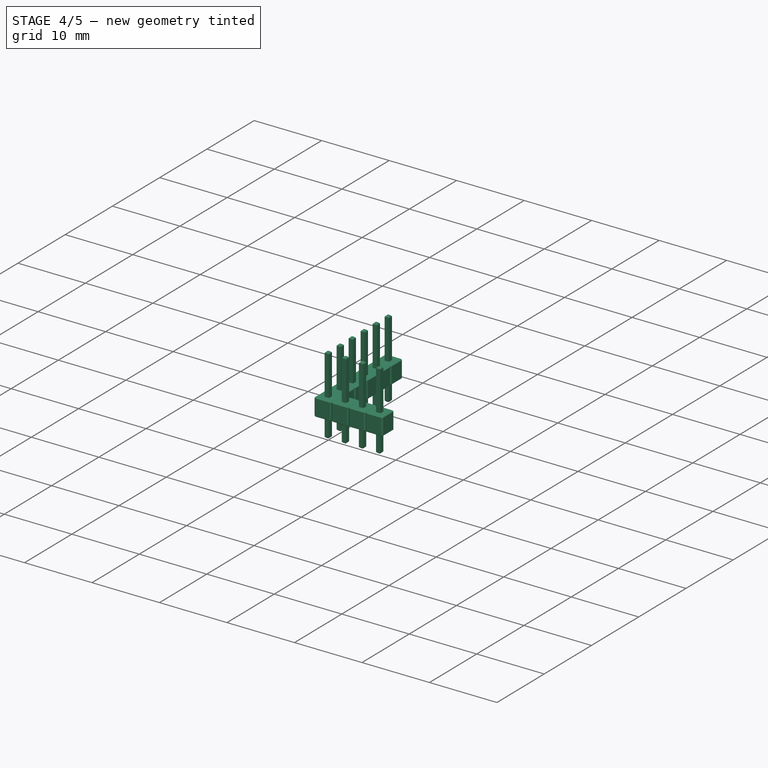
[diagram: stage 4 of 5 — iso view after this stage's code; geometry added in this stage tinted green]
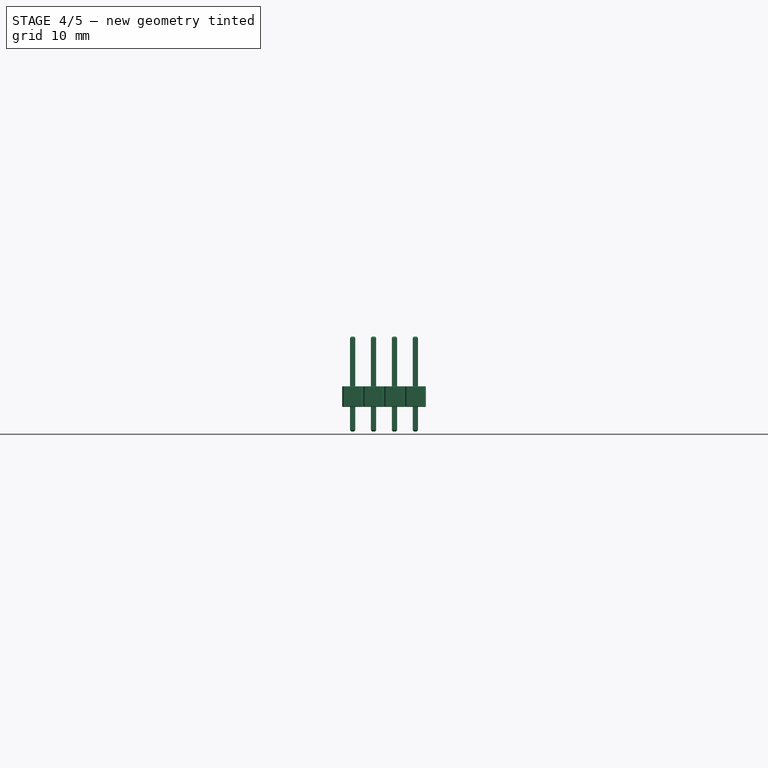
[diagram: stage 4 of 5 — front view after this stage's code; geometry added in this stage tinted green]
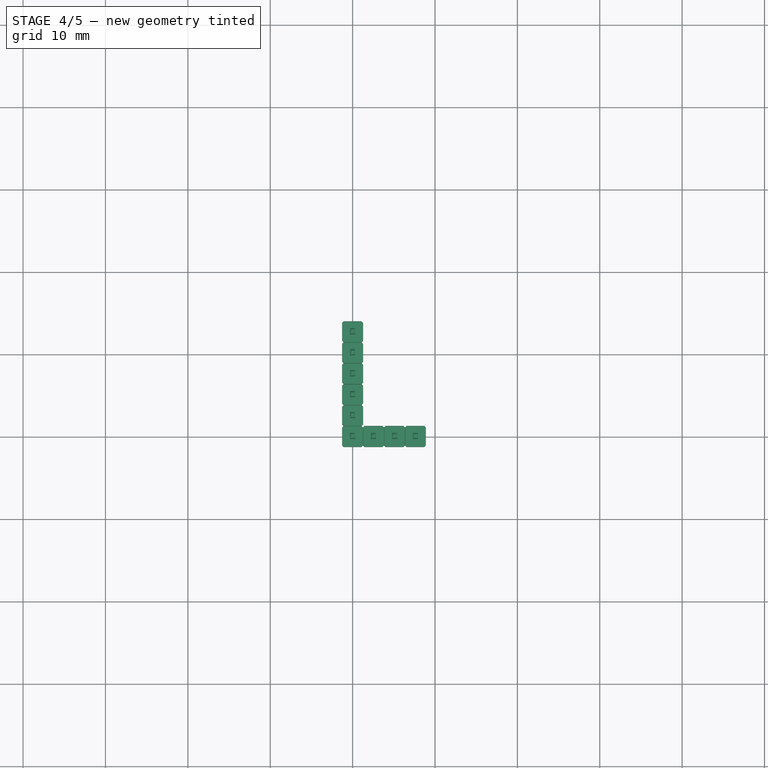
[diagram: stage 4 of 5 — top view after this stage's code; geometry added in this stage tinted green]
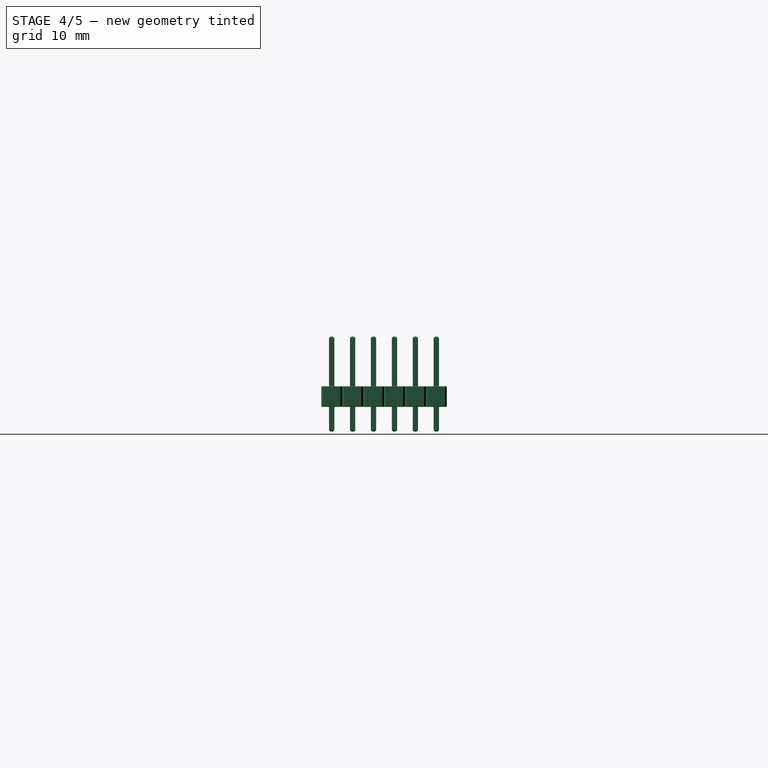
[diagram: stage 4 of 5 — right view after this stage's code; geometry added in this stage tinted green]
FEATURE [App::Part] Part010  label="PWM Pin Header Black"
  Group = -> [Body035,Body034,Array,Array001]
  Origin = -> Origin051
  Placement = pos=(3.81,-11.45,1.6) rot=(0,0,1;0rad)
FEATURE [Sketcher::SketchObject] Sketch211
  MapMode = 5
  Support = -> [XY_Plane058]
  sketch-geometry (4):
    g0: LineSegment StartX=-1.27 StartY=-1.27 StartZ=0 EndX=1.27 EndY=-1.27 EndZ=0
    g1: LineSegment StartX=1.27 StartY=-1.27 StartZ=0 EndX=1.27 EndY=1.27 EndZ=0
    g2: LineSegment StartX=1.27 StartY=1.27 StartZ=0 EndX=-1.27 EndY=1.27 EndZ=0
    g3: LineSegment StartX=-1.27 StartY=1.27 StartZ=0 EndX=-1.27 EndY=-1.27 EndZ=0
  constraints (10):
    c: Coincident(g0,g1)
    c: Coincident(g1,g2)
    c: Coincident(g2,g3)
    c: Coincident(g3,g0)
    c: Horizontal(g0)
    c: Vertical(g3)
    c: Symmetric(g1,g2,g-2)
    c: Symmetric(g0,g1,g-1)
    c: Equal(g3,g2)
    c: DistanceX(g2,g2) = 2.54
FEATURE [Sketcher::SketchObject] Sketch212
  MapMode = 5
  Placement = pos=(0,0,0) rot=(1,0,0;1.5708rad)
  Support = -> [XZ_Plane058]
  sketch-geometry (4):
    g0: LineSegment StartX=-0.32 StartY=-3 StartZ=0 EndX=0.32 EndY=-3 EndZ=0
    g1: LineSegment StartX=0.32 StartY=-3 StartZ=0 EndX=0.32 EndY=8.54 EndZ=0
    g2: LineSegment StartX=0.32 StartY=8.54 StartZ=0 EndX=-0.32 EndY=8.54 EndZ=0
    g3: LineSegment StartX=-0.32 StartY=8.54 StartZ=0 EndX=-0.32 EndY=-3 EndZ=0
  constraints (11):
    c: Coincident(g0,g1)
    c: Coincident(g1,g2)
    c: Coincident(g2,g3)
    c: Coincident(g3,g0)
    c: Horizontal(g0)
    c: Vertical(g1)
    c: Vertical(g3)
    c: DistanceY(g-1,g1) = 8.54
    c: DistanceY(g0,g-1) = 3
    c: Symmetric(g2,g1,g-2)
    c: DistanceX(g2,g2) = 0.64
FEATURE [PartDesign::Pad] Pad066
  Length = 2.5
  Length2 = 100
  Profile = -> Sketch211
  Type = 0
FEATURE [PartDesign::Chamfer] Chamfer018
  Base = -> Pad066 [Edge2,Edge1,Edge5,Edge8]
  BaseFeature = -> Pad066
  Size = 0.2
FEATURE [PartDesign::Chamfer] Chamfer019
  Base = -> Chamfer018 [Face5,Face2]
  BaseFeature = -> Chamfer018
  Size = 0.05
FEATURE [PartDesign::Pad] Pad067
  Length = 0.32
  Length2 = 0.32
  Placement = pos=(0,0,0) rot=(1,0,0;1.5708rad)
  Profile = -> Sketch212
  Type = 4
FEATURE [PartDesign::Chamfer] Chamfer020
  Base = -> Pad067 [Face3,Face1]
  BaseFeature = -> Pad067
  Placement = pos=(0,0,0) rot=(1,0,0;1.5708rad)
  Size = 0.16
FEATURE [PartDesign::Body] Body039  label="Pin Header Block003"
  Group = -> [Sketch211,Pad066,Chamfer018,Chamfer019]
  Origin = -> Origin057
  Tip = -> Chamfer019
FEATURE [Part::FeaturePython] Array003  # Draft array (typed FeaturePython)
  Angle = 360
  ArrayType = 0
  Axis = (0,0,1)
  Base = -> Body039
  Center = (0,0,0)
  Fuse = false
  IntervalAxis = (0,0,0)
  IntervalX = (2.54,0,0)
  IntervalY = (0,1,0)
  IntervalZ = (0,0,1)
  NumberPolar = 1
  NumberX = 4
  NumberY = 1
  NumberZ = 1
FEATURE [App::Part] Part012  label="PWM Pin Header Red"
  Group = -> [Body039,Body038,Array003,Array002]
  Origin = -> Origin056
  Placement = pos=(3.81,-8.91,1.6) rot=(0,0,1;0rad)
FEATURE [Sketcher::SketchObject] Sketch213
  MapMode = 5
  Placement = pos=(0,0,0) rot=(1,0,0;1.5708rad)
  Support = -> [XZ_Plane059]
  sketch-geometry (4):
    g0: LineSegment StartX=-0.32 StartY=-3 StartZ=0 EndX=0.32 EndY=-3 EndZ=0
    g1: LineSegment StartX=0.32 StartY=-3 StartZ=0 EndX=0.32 EndY=8.54 EndZ=0
    g2: LineSegment StartX=0.32 StartY=8.54 StartZ=0 EndX=-0.32 EndY=8.54 EndZ=0
    g3: LineSegment StartX=-0.32 StartY=8.54 StartZ=0 EndX=-0.32 EndY=-3 EndZ=0
  constraints (11):
    c: Coincident(g0,g1)
    c: Coincident(g1,g2)
    c: Coincident(g2,g3)
    c: Coincident(g3,g0)
    c: Horizontal(g0)
    c: Vertical(g1)
    c: Vertical(g3)
    c: DistanceY(g-1,g1) = 8.54
    c: DistanceY(g0,g-1) = 3
    c: Symmetric(g2,g1,g-2)
    c: DistanceX(g2,g2) = 0.64
FEATURE [Sketcher::SketchObject] Sketch214
  MapMode = 5
  Support = -> [XY_Plane059]
  sketch-geometry (4):
    g0: LineSegment StartX=-1.27 StartY=-1.27 StartZ=0 EndX=1.27 EndY=-1.27 EndZ=0
    g1: LineSegment StartX=1.27 StartY=-1.27 StartZ=0 EndX=1.27 EndY=1.27 EndZ=0
    g2: LineSegment StartX=1.27 StartY=1.27 StartZ=0 EndX=-1.27 EndY=1.27 EndZ=0
    g3: LineSegment StartX=-1.27 StartY=1.27 StartZ=0 EndX=-1.27 EndY=-1.27 EndZ=0
  constraints (10):
    c: Coincident(g0,g1)
    c: Coincident(g1,g2)
    c: Coincident(g2,g3)
    c: Coincident(g3,g0)
    c: Horizontal(g0)
    c: Vertical(g3)
    c: Symmetric(g1,g2,g-2)
    c: Symmetric(g0,g1,g-1)
    c: Equal(g3,g2)
    c: DistanceX(g2,g2) = 2.54
FEATURE [PartDesign::Pad] Pad068
  Length = 0.32
  Length2 = 0.32
  Placement = pos=(0,0,0) rot=(1,0,0;1.5708rad)
  Profile = -> Sketch213
  Type = 4
FEATURE [PartDesign::Chamfer] Chamfer023
  Base = -> Pad068 [Face3,Face1]
  BaseFeature = -> Pad068
  Placement = pos=(0,0,0) rot=(1,0,0;1.5708rad)
  Size = 0.16
FEATURE [PartDesign::Pad] Pad069
  Length = 2.5
  Length2 = 100
  Profile = -> Sketch214
  Type = 0
FEATURE [PartDesign::Chamfer] Chamfer021
  Base = -> Pad069 [Edge2,Edge1,Edge5,Edge8]
  BaseFeature = -> Pad069
  Size = 0.2
FEATURE [PartDesign::Chamfer] Chamfer022
  Base = -> Chamfer021 [Face5,Face2]
  BaseFeature = -> Chamfer021
  Size = 0.05
FEATURE [PartDesign::Body] Body040  label="Pin Header Pin004"
  Group = -> [Sketch213,Pad068,Chamfer023]
  Origin = -> Origin060
  Tip = -> Chamfer023
FEATURE [Part::FeaturePython] Array004  # Draft array (typed FeaturePython)
  Angle = 360
  ArrayType = 0
  Axis = (0,0,1)
  Base = -> Body040
  Center = (0,0,0)
  Fuse = false
  IntervalAxis = (0,0,0)
  IntervalX = (2.54,0,0)
  IntervalY = (0,1,0)
  IntervalZ = (0,0,1)
  NumberPolar = 1
  NumberX = 4
  NumberY = 1
  NumberZ = 1
FEATURE [PartDesign::Body] Body041  label="Pin Header Block004"
  Group = -> [Sketch214,Pad069,Chamfer021,Chamfer022]
  Origin = -> Origin061
  Tip = -> Chamfer022
FEATURE [Part::FeaturePython] Array005  # Draft array (typed FeaturePython)
  Angle = 360
  ArrayType = 0
  Axis = (0,0,1)
  Base = -> Body041
  Center = (0,0,0)
  Fuse = false
  IntervalAxis = (0,0,0)
  IntervalX = (2.54,0,0)
  IntervalY = (0,1,0)
  IntervalZ = (0,0,1)
  NumberPolar = 1
  NumberX = 4
  NumberY = 1
  NumberZ = 1
FEATURE [Sketcher::SketchObject] Sketch219
  MapMode = 5
  Placement = pos=(0,0,0) rot=(1,0,0;1.5708rad)
  Support = -> [XZ_Plane070]
  sketch-geometry (4):
    g0: LineSegment StartX=-0.32 StartY=-3 StartZ=0 EndX=0.32 EndY=-3 EndZ=0
    g1: LineSegment StartX=0.32 StartY=-3 StartZ=0 EndX=0.32 EndY=8.54 EndZ=0
    g2: LineSegment StartX=0.32 StartY=8.54 StartZ=0 EndX=-0.32 EndY=8.54 EndZ=0
    g3: LineSegment StartX=-0.32 StartY=8.54 StartZ=0 EndX=-0.32 EndY=-3 EndZ=0
  constraints (11):
    c: Coincident(g0,g1)
    c: Coincident(g1,g2)
    c: Coincident(g2,g3)
    c: Coincident(g3,g0)
    c: Horizontal(g0)
    c: Vertical(g1)
    c: Vertical(g3)
    c: DistanceY(g-1,g1) = 8.54
    c: DistanceY(g0,g-1) = 3
    c: Symmetric(g2,g1,g-2)
    c: DistanceX(g2,g2) = 0.64
FEATURE [PartDesign::Pad] Pad073
  Length = 0.32
  Length2 = 0.32
  Placement = pos=(0,0,0) rot=(1,0,0;1.5708rad)
  Profile = -> Sketch219
  Type = 4
FEATURE [PartDesign::Chamfer] Chamfer030
  Base = -> Pad073 [Face3,Face1]
  BaseFeature = -> Pad073
  Placement = pos=(0,0,0) rot=(1,0,0;1.5708rad)
  Size = 0.16
FEATURE [PartDesign::Body] Body042  label="Pin Header Pin005"
  Group = -> [Sketch219,Pad073,Chamfer030]
  Origin = -> Origin068
  Tip = -> Chamfer030
FEATURE [Part::FeaturePython] Array006  # Draft array (typed FeaturePython)
  Angle = 360
  ArrayType = 0
  Axis = (0,0,1)
  Base = -> Body042
  Center = (0,0,0)
  Fuse = false
  IntervalAxis = (0,0,0)
  IntervalX = (2.54,0,0)
  IntervalY = (0,1,0)
  IntervalZ = (0,0,1)
  NumberPolar = 1
  NumberX = 4
  NumberY = 1
  NumberZ = 1
FEATURE [Sketcher::SketchObject] Sketch220
  MapMode = 5
  Support = -> [XY_Plane071]
  sketch-geometry (4):
    g0: LineSegment StartX=-1.27 StartY=-1.27 StartZ=0 EndX=1.27 EndY=-1.27 EndZ=0
    g1: LineSegment StartX=1.27 StartY=-1.27 StartZ=0 EndX=1.27 EndY=1.27 EndZ=0
    g2: LineSegment StartX=1.27 StartY=1.27 StartZ=0 EndX=-1.27 EndY=1.27 EndZ=0
    g3: LineSegment StartX=-1.27 StartY=1.27 StartZ=0 EndX=-1.27 EndY=-1.27 EndZ=0
  constraints (10):
    c: Coincident(g0,g1)
    c: Coincident(g1,g2)
    c: Coincident(g2,g3)
    c: Coincident(g3,g0)
    c: Horizontal(g0)
    c: Vertical(g3)
    c: Symmetric(g1,g2,g-2)
    c: Symmetric(g0,g1,g-1)
    c: Equal(g3,g2)
    c: DistanceX(g2,g2) = 2.54
FEATURE [PartDesign::Pad] Pad075
  Length = 2.5
  Length2 = 100
  Profile = -> Sketch220
  Type = 0
FEATURE [PartDesign::Chamfer] Chamfer032
  Base = -> Pad075 [Edge2,Edge1,Edge5,Edge8]
  BaseFeature = -> Pad075
  Size = 0.2
FEATURE [PartDesign::Chamfer] Chamfer031
  Base = -> Chamfer032 [Face5,Face2]
  BaseFeature = -> Chamfer032
  Size = 0.05
FEATURE [PartDesign::Body] Body043  label="Pin Header Block005"
  Group = -> [Sketch220,Pad075,Chamfer032,Chamfer031]
  Origin = -> Origin070
  Tip = -> Chamfer031
FEATURE [Part::FeaturePython] Array007  # Draft array (typed FeaturePython)
  Angle = 360
  ArrayType = 0
  Axis = (0,0,1)
  Base = -> Body043
  Center = (0,0,0)
  Fuse = false
  IntervalAxis = (0,0,0)
  IntervalX = (2.54,0,0)
  IntervalY = (0,1,0)
  IntervalZ = (0,0,1)
  NumberPolar = 1
  NumberX = 4
  NumberY = 1
  NumberZ = 1
FEATURE [PartDesign::Body] Body046  label="Pin Header Pin007"
  Group = -> [Sketch218,Pad074,Chamfer029]
  Origin = -> Origin065
  Tip = -> Chamfer029
FEATURE [Part::FeaturePython] Array010  # Draft array (typed FeaturePython)
  Angle = 360
  ArrayType = 0
  Axis = (0,0,1)
  Base = -> Body046
  Center = (0,0,0)
  Fuse = false
  IntervalAxis = (0,0,0)
  IntervalX = (2.54,0,0)
  IntervalY = (0,1,0)
  IntervalZ = (0,0,1)
  NumberPolar = 1
  NumberX = 4
  NumberY = 1
  NumberZ = 1
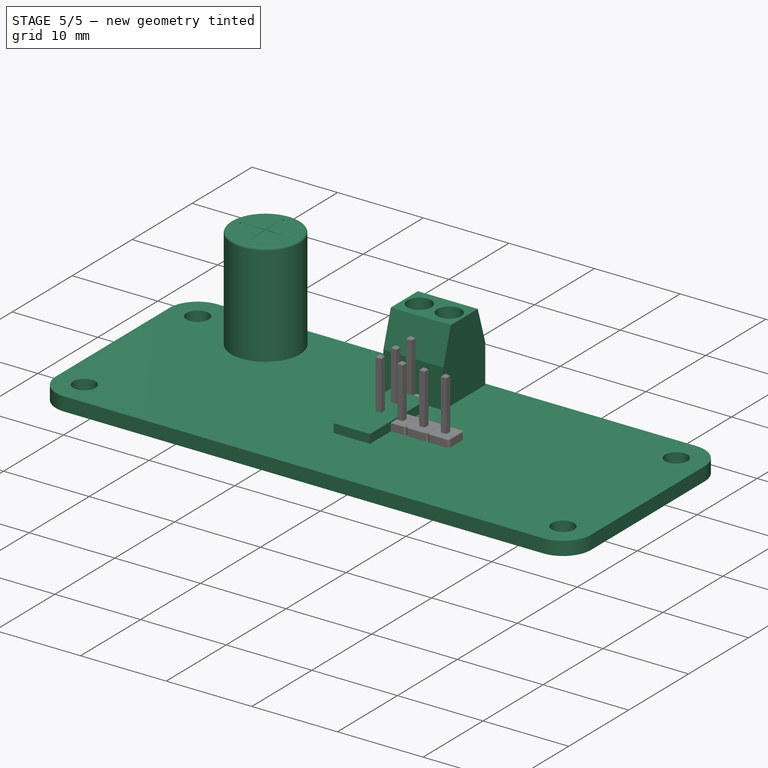
[diagram: stage 5 of 5 — iso view after this stage's code; geometry added in this stage tinted green]
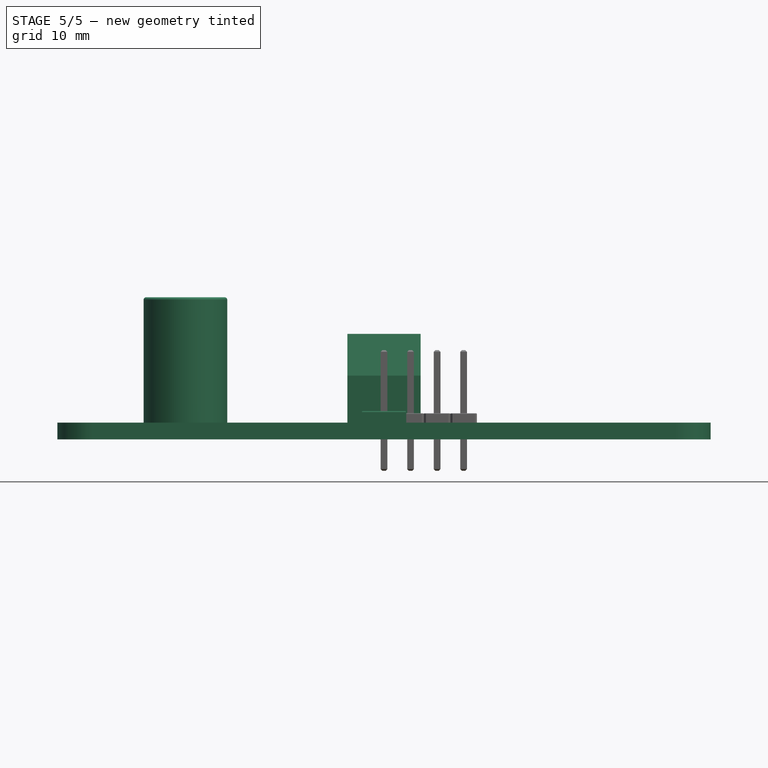
[diagram: stage 5 of 5 — front view after this stage's code; geometry added in this stage tinted green]
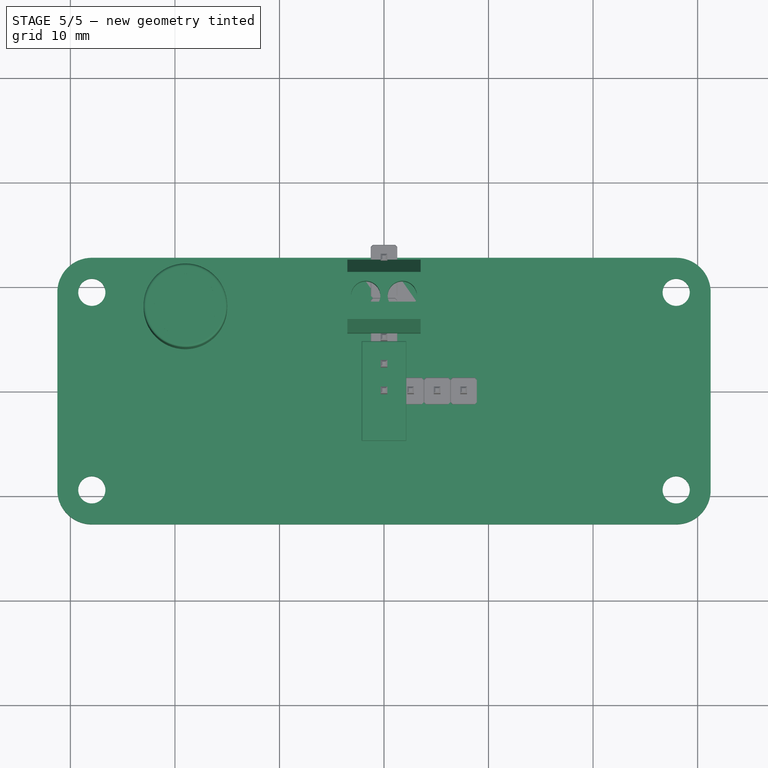
[diagram: stage 5 of 5 — top view after this stage's code; geometry added in this stage tinted green]
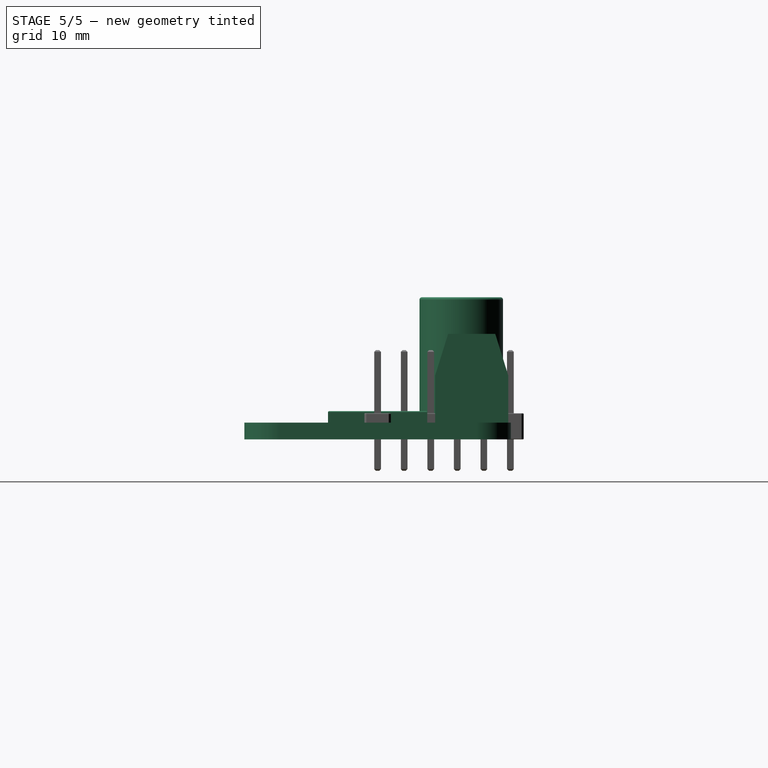
[diagram: stage 5 of 5 — right view after this stage's code; geometry added in this stage tinted green]
FEATURE [Sketcher::SketchObject] Sketch
  MapMode = 5
  Support = -> [XY_Plane001]
  sketch-geometry (10):
    g0: LineSegment StartX=-31.25 StartY=12.75 StartZ=0 EndX=31.25 EndY=12.75 EndZ=0
    g1: LineSegment StartX=31.25 StartY=12.75 StartZ=0 EndX=31.25 EndY=-12.75 EndZ=0
    g2: LineSegment StartX=31.25 StartY=-12.75 StartZ=0 EndX=-31.25 EndY=-12.75 EndZ=0
    g3: LineSegment StartX=-31.25 StartY=-12.75 StartZ=0 EndX=-31.25 EndY=12.75 EndZ=0
    g4: Circle CenterX=-27.95 CenterY=9.45 CenterZ=0 NormalX=0 NormalY=0 NormalZ=1 AngleXU=0 Radius=1.3
    g5: Circle CenterX=27.95 CenterY=9.45 CenterZ=0 NormalX=0 NormalY=0 NormalZ=1 AngleXU=0 Radius=1.3
    g6: Circle CenterX=-27.95 CenterY=-9.45 CenterZ=0 NormalX=0 NormalY=0 NormalZ=1 AngleXU=0 Radius=1.3
    g7: Circle CenterX=27.95 CenterY=-9.45 CenterZ=0 NormalX=0 NormalY=0 NormalZ=1 AngleXU=0 Radius=1.3
    g8: LineSegment [constr] StartX=-27.95 StartY=12.75 StartZ=0 EndX=-27.95 EndY=9.45 EndZ=0
    g9: LineSegment [constr] StartX=-27.95 StartY=9.45 StartZ=0 EndX=-31.25 EndY=9.45 EndZ=0
  constraints (25):
    c: Coincident(g0,g1)
    c: Coincident(g1,g2)
    c: Coincident(g2,g3)
    c: Coincident(g3,g0)
    c: Horizontal(g2)
    c: Vertical(g3)
    c: Symmetric(g0,g0,g-2)
    c: Symmetric(g0,g1,g-1)
    c: DistanceX(g0,g0) = 62.5
    c: DistanceY(g1,g1) = 25.5
    c: Equal(g5,g4)
    c: Equal(g4,g6)
    c: Equal(g6,g7)
    c: Radius(g5) = 1.3
    c: Symmetric(g5,g4,g-2)
    c: Symmetric(g5,g7,g-1)
    c: PointOnObject(g8,g0)
    c: Coincident(g8,g4)
    c: Coincident(g9,g4)
    c: PointOnObject(g9,g3)
    c: Horizontal(g9)
    c: Vertical(g8)
    c: Equal(g8,g9)
    c: DistanceX(g9,g9) = 3.3
    c: Symmetric(g6,g4,g-1)
FEATURE [PartDesign::Pad] Pad
  Length = 1.6
  Length2 = 100
  Profile = -> Sketch
  Type = 0
FEATURE [PartDesign::Fillet] Fillet
  Base = -> Pad [Edge8,Edge1,Edge5,Edge2]
  BaseFeature = -> Pad
  Radius = 3.3
FEATURE [PartDesign::Body] Body  label="PCA9685 PCB"
  Group = -> [Sketch,Pad,Fillet]
  Origin = -> Origin001
  Tip = -> Fillet
FEATURE [PartDesign::ShapeBinder] CopyFillet
  Placement = pos=(0,0,1.6) rot=(0,0,1;0rad)
  TraceSupport = false
FEATURE [Sketcher::SketchObject] Sketch001
  MapMode = 5
  Placement = pos=(0,0,1.6) rot=(0,0,1;0rad)
  Support = -> [CopyFillet]
  sketch-geometry (6):
    g0: LineSegment StartX=-3.5 StartY=5.49996 StartZ=0 EndX=3.5 EndY=5.49996 EndZ=0
    g1: LineSegment StartX=3.5 StartY=5.49996 StartZ=0 EndX=3.5 EndY=12.5 EndZ=0
    g2: LineSegment StartX=3.5 StartY=12.5 StartZ=0 EndX=-3.5 EndY=12.5 EndZ=0
    g3: LineSegment StartX=-3.5 StartY=12.5 StartZ=0 EndX=-3.5 EndY=5.49996 EndZ=0
    g4: LineSegment [constr] StartX=-3.5 StartY=12.5 StartZ=0 EndX=0 EndY=9 EndZ=0
    g5: LineSegment [constr] StartX=0 StartY=9 StartZ=0 EndX=-3.5 EndY=5.49996 EndZ=0
  constraints (16):
    c: Coincident(g0,g1)
    c: Coincident(g1,g2)
    c: Coincident(g2,g3)
    c: Coincident(g3,g0)
    c: Horizontal(g0)
    c: Vertical(g1)
    c: Vertical(g3)
    c: Symmetric(g1,g2,g-2)
    c: DistanceX(g2,g2) = 7
    c: DistanceY(g1,g1) = 7
    c: Coincident(g4,g2)
    c: PointOnObject(g4,g-2)
    c: Coincident(g5,g4)
    c: Coincident(g5,g0)
    c: Perpendicular(g4,g5)
    c: DistanceY(g-1,g4) = 9
FEATURE [PartDesign::Pad] Pad001
  Length = 8.5
  Length2 = 100
  Placement = pos=(0,0,1.6) rot=(0,0,1;0rad)
  Profile = -> Sketch001
  Type = 0
FEATURE [Sketcher::SketchObject] Sketch002
  ExternalGeometry = -> [Pad001]
  MapMode = 5
  Placement = pos=(3.5,0,1.6) rot=(0.57735,0.57735,0.57735;2.0944rad)
  Support = -> [Pad001]
  sketch-geometry (6):
    g0: LineSegment StartX=5.49996 StartY=4.5 StartZ=0 EndX=6.74996 EndY=8.5 EndZ=0
    g1: LineSegment StartX=6.74996 StartY=8.5 StartZ=0 EndX=5.49996 EndY=8.5 EndZ=0
    g2: LineSegment StartX=5.49996 StartY=8.5 StartZ=0 EndX=5.49996 EndY=4.5 EndZ=0
    g3: LineSegment StartX=11.25 StartY=8.5 StartZ=0 EndX=12.5 EndY=8.5 EndZ=0
    g4: LineSegment StartX=12.5 StartY=8.5 StartZ=0 EndX=12.5 EndY=4.5 EndZ=0
    g5: LineSegment StartX=12.5 StartY=4.5 StartZ=0 EndX=11.25 EndY=8.5 EndZ=0
  constraints (16):
    c: Coincident(g0,g1)
    c: Horizontal(g1)
    c: Coincident(g1,g2)
    c: Coincident(g2,g0)
    c: Vertical(g2)
    c: Horizontal(g3)
    c: Coincident(g3,g4)
    c: Vertical(g4)
    c: Coincident(g4,g5)
    c: Coincident(g5,g3)
    c: Equal(g1,g3)
    c: Equal(g2,g4)
    c: Coincident(g1,g-3)
    c: DistanceY(g4,g4) = 4
    c: Coincident(g3,g-3)
    c: DistanceX(g0,g3) = 4.5
FEATURE [PartDesign::Pocket] Pocket
  BaseFeature = -> Pad001
  Length = 7
  Length2 = 100
  Placement = pos=(0,0,1.6) rot=(0,0,1;0rad)
  Profile = -> Sketch002
  Type = 0
FEATURE [Sketcher::SketchObject] Sketch003
  ExternalGeometry = -> [Pocket]
  MapMode = 5
  Placement = pos=(0,0,10.1) rot=(0,0,1;0rad)
  Support = -> [Pocket]
  sketch-geometry (4):
    g0: Circle CenterX=-1.75 CenterY=8.99996 CenterZ=0 NormalX=0 NormalY=0 NormalZ=1 AngleXU=0 Radius=1.4
    g1: Circle CenterX=1.75 CenterY=8.99996 CenterZ=0 NormalX=0 NormalY=0 NormalZ=1 AngleXU=0 Radius=1.4
    g2: LineSegment [constr] StartX=-3.5 StartY=11.25 StartZ=0 EndX=0 EndY=8.99996 EndZ=0
    g3: LineSegment [constr] StartX=-3.5 StartY=6.74996 StartZ=0 EndX=0 EndY=8.99996 EndZ=0
  constraints (9):
    c: Symmetric(g0,g1,g-2)
    c: Equal(g1,g0)
    c: Radius(g1) = 1.4
    c: Coincident(g2,g-3)
    c: Coincident(g3,g-4)
    c: Coincident(g3,g2)
    c: Equal(g2,g3)
    c: Symmetric(g0,g1,g2)
    c: DistanceX(g0,g1) = 3.5
FEATURE [PartDesign::Pocket] Pocket001
  BaseFeature = -> Pocket
  Length = 5
  Length2 = 100
  Placement = pos=(0,0,1.6) rot=(0,0,1;0rad)
  Profile = -> Sketch003
  Type = 0
FEATURE [Sketcher::SketchObject] Sketch004
  MapMode = 5
  Placement = pos=(0,12.5,1.6) rot=(0,0.707107,0.707107;3.14159rad)
  Support = -> [Pocket001]
  sketch-geometry (8):
    g0: LineSegment StartX=-3.15 StartY=0.5 StartZ=0 EndX=-0.35 EndY=0.5 EndZ=0
    g1: LineSegment StartX=-0.35 StartY=0.5 StartZ=0 EndX=-0.35 EndY=4 EndZ=0
    g2: LineSegment StartX=-0.35 StartY=4 StartZ=0 EndX=-3.15 EndY=4 EndZ=0
    g3: LineSegment StartX=-3.15 StartY=4 StartZ=0 EndX=-3.15 EndY=0.5 EndZ=0
    g4: LineSegment StartX=0.35 StartY=0.5 StartZ=0 EndX=3.15 EndY=0.5 EndZ=0
    g5: LineSegment StartX=3.15 StartY=0.5 StartZ=0 EndX=3.15 EndY=4 EndZ=0
    g6: LineSegment StartX=3.15 StartY=4 StartZ=0 EndX=0.35 EndY=4 EndZ=0
    g7: LineSegment StartX=0.35 StartY=4 StartZ=0 EndX=0.35 EndY=0.5 EndZ=0
  constraints (22):
    c: Coincident(g0,g1)
    c: Coincident(g1,g2)
    c: Coincident(g2,g3)
    c: Coincident(g3,g0)
    c: Horizontal(g0)
    c: Horizontal(g2)
    c: Vertical(g1)
    c: Vertical(g3)
    c: Coincident(g4,g5)
    c: Coincident(g5,g6)
    c: Coincident(g6,g7)
    c: Coincident(g7,g4)
    c: Horizontal(g4)
    c: Horizontal(g6)
    c: Vertical(g5)
    c: Equal(g6,g2)
    c: Symmetric(g1,g6,g-2)
    c: Symmetric(g0,g4,g-2)
    c: DistanceX(g1,g5) = 3.5
    c: DistanceY(g5,g5) = 3.5
    c: DistanceX(g6,g6) = 2.8
    c: DistanceY(g-1,g4) = 0.5
FEATURE [PartDesign::Pocket] Pocket002
  BaseFeature = -> Pocket001
  Length = 4
  Length2 = 100
  Placement = pos=(0,0,1.6) rot=(0,0,1;0rad)
  Profile = -> Sketch004
  Type = 0
FEATURE [PartDesign::Body] Body001  label="Terminal Block"
  Group = -> [CopyFillet,Sketch001,Pad001,Sketch002,Pocket,Sketch003,Pocket001,Sketch004,Pocket002]
  Origin = -> Origin002
  Tip = -> Pocket002
FEATURE [PartDesign::ShapeBinder] CopyFillet001
  Placement = pos=(0,0,1.6) rot=(0,0,1;0rad)
  TraceSupport = false
FEATURE [Sketcher::SketchObject] Sketch005
  MapMode = 5
  Placement = pos=(0,0,1.6) rot=(0,0,1;0rad)
  Support = -> [CopyFillet001]
  sketch-geometry (4):
    g0: LineSegment StartX=-2.125 StartY=-4.75 StartZ=0 EndX=2.125 EndY=-4.75 EndZ=0
    g1: LineSegment StartX=2.125 StartY=-4.75 StartZ=0 EndX=2.125 EndY=4.75 EndZ=0
    g2: LineSegment StartX=2.125 StartY=4.75 StartZ=0 EndX=-2.125 EndY=4.75 EndZ=0
    g3: LineSegment StartX=-2.125 StartY=4.75 StartZ=0 EndX=-2.125 EndY=-4.75 EndZ=0
  constraints (10):
    c: Coincident(g0,g1)
    c: Coincident(g1,g2)
    c: Coincident(g2,g3)
    c: Coincident(g3,g0)
    c: Horizontal(g0)
    c: Vertical(g3)
    c: Symmetric(g1,g2,g-2)
    c: Symmetric(g1,g0,g-1)
    c: DistanceX(g2,g2) = 4.25
    c: DistanceY(g1,g1) = 9.5
FEATURE [PartDesign::Pad] Pad002
  Length = 1.1
  Length2 = 100
  Placement = pos=(0,0,1.6) rot=(0,0,1;0rad)
  Profile = -> Sketch005
  Type = 0
FEATURE [PartDesign::Fillet] Fillet001
  Base = -> Pad002 [Face6]
  BaseFeature = -> Pad002
  Placement = pos=(0,0,1.6) rot=(0,0,1;0rad)
  Radius = 0.1
FEATURE [PartDesign::Body] Body002  label="PCA9685"
  Group = -> [CopyFillet001,Sketch005,Pad002,Fillet001]
  Origin = -> Origin003
  Tip = -> Fillet001
FEATURE [PartDesign::ShapeBinder] CopyFillet002
  Placement = pos=(0,0,1.6) rot=(0,0,1;0rad)
  TraceSupport = false
FEATURE [Sketcher::SketchObject] Sketch006
  MapMode = 5
  Placement = pos=(0,0,1.6) rot=(0,0,1;0rad)
  Support = -> [CopyFillet002]
  sketch-geometry (1):
    g0: Circle CenterX=-19 CenterY=8 CenterZ=0 NormalX=0 NormalY=0 NormalZ=1 AngleXU=0 Radius=4
  constraints (3):
    c: Radius(g0) = 4
    c: DistanceX(g0,g-1) = 19
    c: DistanceY(g-1,g0) = 8
FEATURE [PartDesign::Pad] Pad003
  Length = 12
  Length2 = 100
  Placement = pos=(0,0,1.6) rot=(0,0,1;0rad)
  Profile = -> Sketch006
  Type = 0
FEATURE [PartDesign::Fillet] Fillet002
  Base = -> Pad003 [Edge3]
  BaseFeature = -> Pad003
  Placement = pos=(0,0,1.6) rot=(0,0,1;0rad)
  Radius = 0.25
FEATURE [Sketcher::SketchObject] Sketch007
  ExternalGeometry = -> [Fillet002]
  MapMode = 5
  Placement = pos=(0,0,13.6) rot=(0,0,1;0rad)
  Support = -> [Fillet002]
  sketch-geometry (1):
    g0: Circle CenterX=-19 CenterY=8 CenterZ=0 NormalX=0 NormalY=0 NormalZ=1 AngleXU=0 Radius=3
  constraints (2):
    c: Coincident(g-3,g0)
    c: Radius(g0) = 3
FEATURE [PartDesign::Pocket] Pocket003
  BaseFeature = -> Fillet002
  Length = 0.1
  Length2 = 100
  Placement = pos=(0,0,1.6) rot=(0,0,1;0rad)
  Profile = -> Sketch007
  Type = 0
FEATURE [PartDesign::Body] Body003  label="Capacitor Body"
  Group = -> [CopyFillet002,Sketch006,Pad003,Fillet002,Sketch007,Pocket003]
  Origin = -> Origin004
  Tip = -> Pocket003
FEATURE [PartDesign::ShapeBinder] CopyPocket003
  Placement = pos=(0,0,-0.1) rot=(0,0,1;0rad)
  TraceSupport = false
FEATURE [Sketcher::SketchObject] Sketch009
  MapMode = 5
  Placement = pos=(0,0,13.5) rot=(0,0,1;0rad)
  Support = -> [CopyPocket003]
  sketch-geometry (1):
    g0: Circle CenterX=-19 CenterY=8 CenterZ=0 NormalX=0 NormalY=0 NormalZ=1 AngleXU=0 Radius=3
  constraints (3):
    c: DistanceY(g-1,g0) = 8
    c: DistanceX(g0,g-1) = 19
    c: Radius(g0) = 3
FEATURE [PartDesign::Pad] Pad004
  Length = 0.1
  Length2 = 100
  Placement = pos=(0,0,-0.1) rot=(0,0,1;0rad)
  Profile = -> Sketch009
  Type = 0
FEATURE [Sketcher::SketchObject] Sketch010
  ExternalGeometry = -> [Pad004]
  MapMode = 5
  Placement = pos=(0,0,13.6) rot=(0,0,1;0rad)
  Support = -> [Pad004]
  sketch-geometry (18):
    g0: LineSegment StartX=-19.125 StartY=10.9974 StartZ=0 EndX=-18.875 EndY=10.9974 EndZ=0
    g1: LineSegment StartX=-18.875 StartY=10.9974 StartZ=0 EndX=-18.875 EndY=8.125 EndZ=0
    g2: LineSegment StartX=-18.875 StartY=5.00261 StartZ=0 EndX=-19.125 EndY=5.00261 EndZ=0
    g3: LineSegment StartX=-19.125 StartY=5.00261 StartZ=0 EndX=-19.125 EndY=7.875 EndZ=0
    g4: LineSegment StartX=-21.9974 StartY=7.875 StartZ=0 EndX=-19.125 EndY=7.875 EndZ=0
    g5: LineSegment StartX=-16.0026 StartY=7.875 StartZ=0 EndX=-16.0026 EndY=8.125 EndZ=0
    g6: LineSegment StartX=-16.0026 StartY=8.125 StartZ=0 EndX=-18.875 EndY=8.125 EndZ=0
    g7: LineSegment StartX=-21.9974 StartY=8.125 StartZ=0 EndX=-21.9974 EndY=7.875 EndZ=0
    g8: LineSegment StartX=-19.125 StartY=8.125 StartZ=0 EndX=-21.9974 EndY=8.125 EndZ=0
    g9: LineSegment StartX=-19.125 StartY=8.125 StartZ=0 EndX=-19.125 EndY=10.9974 EndZ=0
    g10: LineSegment StartX=-18.875 StartY=7.875 StartZ=0 EndX=-18.875 EndY=5.00261 EndZ=0
    g11: LineSegment StartX=-18.875 StartY=7.875 StartZ=0 EndX=-16.0026 EndY=7.875 EndZ=0
    g12: LineSegment [constr] StartX=-19.125 StartY=7.875 StartZ=0 EndX=-19 EndY=8 EndZ=0
    g13: LineSegment [constr] StartX=-19 StartY=8 StartZ=0 EndX=-19.125 EndY=8.125 EndZ=0
    g14: LineSegment [constr] StartX=-19 StartY=8 StartZ=0 EndX=-18.875 EndY=8.125 EndZ=0
    g15: LineSegment [constr] StartX=-19 StartY=8 StartZ=0 EndX=-18.875 EndY=7.875 EndZ=0
    g16: LineSegment [constr] StartX=-19.125 StartY=8.125 StartZ=0 EndX=-18.875 EndY=8.125 EndZ=0
    g17: LineSegment [constr] StartX=-18.875 StartY=8.125 StartZ=0 EndX=-18.875 EndY=7.875 EndZ=0
  constraints (44):
    c: Coincident(g0,g1)
    c: Coincident(g10,g2)
    c: Coincident(g2,g3)
    c: Coincident(g9,g0)
    c: Horizontal(g0)
    c: Horizontal(g2)
    c: Vertical(g1)
    c: Vertical(g3)
    c: Coincident(g11,g5)
    c: Coincident(g5,g6)
    c: Coincident(g8,g7)
    c: Coincident(g7,g4)
    c: Horizontal(g4)
    c: Vertical(g5)
    c: Vertical(g7)
    c: Tangent(g6,g8)
    c: Coincident(g9,g8)
    c: Tangent(g3,g9)
    c: Coincident(g1,g6)
    c: Tangent(g1,g10)
    c: Coincident(g4,g3)
    c: Coincident(g11,g10)
    c: Tangent(g4,g11)
    c: Coincident(g12,g3)
    c: Coincident(g12,g-3)
    c: Coincident(g13,g12)
    c: Coincident(g13,g8)
    c: Coincident(g14,g12)
    c: Coincident(g14,g1)
    c: Coincident(g15,g12)
    c: Coincident(g15,g10)
    c: Equal(g14,g13)
    c: Equal(g13,g12)
    c: Equal(g12,g15)
    c: Coincident(g16,g8)
    c: Coincident(g16,g1)
    c: Coincident(g17,g1)
    c: Coincident(g17,g10)
    c: Equal(g16,g17)
    c: PointOnObject(g7,g-3)
    c: PointOnObject(g0,g-3)
    c: PointOnObject(g5,g-3)
    c: PointOnObject(g2,g-3)
    c: DistanceX(g16,g16) = 0.25
FEATURE [PartDesign::Pocket] Pocket004
  BaseFeature = -> Pad004
  Length = 0.05
  Length2 = 100
  Placement = pos=(0,0,-0.1) rot=(0,0,1;0rad)
  Profile = -> Sketch010
  Type = 0
FEATURE [PartDesign::Body] Body004  label="Capacitor Head"
  Group = -> [CopyPocket003,Sketch009,Pad004,Sketch010,Pocket004]
  Origin = -> Origin006
  Tip = -> Pocket004
FEATURE [App::Part] Part001  label="Capacitor"
  Group = -> [Body003,Body004]
  Origin = -> Origin005
FEATURE [Sketcher::SketchObject] Sketch207
  MapMode = 5
  Placement = pos=(0,0,0) rot=(1,0,0;1.5708rad)
  Support = -> [XZ_Plane050]
  sketch-geometry (4):
    g0: LineSegment StartX=-0.32 StartY=-3 StartZ=0 EndX=0.32 EndY=-3 EndZ=0
    g1: LineSegment StartX=0.32 StartY=-3 StartZ=0 EndX=0.32 EndY=8.54 EndZ=0
    g2: LineSegment StartX=0.32 StartY=8.54 StartZ=0 EndX=-0.32 EndY=8.54 EndZ=0
    g3: LineSegment StartX=-0.32 StartY=8.54 StartZ=0 EndX=-0.32 EndY=-3 EndZ=0
  constraints (11):
    c: Coincident(g0,g1)
    c: Coincident(g1,g2)
    c: Coincident(g2,g3)
    c: Coincident(g3,g0)
    c: Horizontal(g0)
    c: Vertical(g1)
    c: Vertical(g3)
    c: DistanceY(g-1,g1) = 8.54
    c: DistanceY(g0,g-1) = 3
    c: Symmetric(g2,g1,g-2)
    c: DistanceX(g2,g2) = 0.64
FEATURE [Sketcher::SketchObject] Sketch208
  MapMode = 5
  Support = -> [XY_Plane052]
  sketch-geometry (4):
    g0: LineSegment StartX=-1.27 StartY=-1.27 StartZ=0 EndX=1.27 EndY=-1.27 EndZ=0
    g1: LineSegment StartX=1.27 StartY=-1.27 StartZ=0 EndX=1.27 EndY=1.27 EndZ=0
    g2: LineSegment StartX=1.27 StartY=1.27 StartZ=0 EndX=-1.27 EndY=1.27 EndZ=0
    g3: LineSegment StartX=-1.27 StartY=1.27 StartZ=0 EndX=-1.27 EndY=-1.27 EndZ=0
  constraints (10):
    c: Coincident(g0,g1)
    c: Coincident(g1,g2)
    c: Coincident(g2,g3)
    c: Coincident(g3,g0)
    c: Horizontal(g0)
    c: Vertical(g3)
    c: Symmetric(g1,g2,g-2)
    c: Symmetric(g0,g1,g-1)
    c: Equal(g3,g2)
    c: DistanceX(g2,g2) = 2.54
FEATURE [PartDesign::Pad] Pad062
  Length = 0.32
  Length2 = 0.32
  Placement = pos=(0,0,0) rot=(1,0,0;1.5708rad)
  Profile = -> Sketch207
  Type = 4
FEATURE [PartDesign::Chamfer] Chamfer012
  Base = -> Pad062 [Face3,Face1]
  BaseFeature = -> Pad062
  Placement = pos=(0,0,0) rot=(1,0,0;1.5708rad)
  Size = 0.16
FEATURE [PartDesign::Body] Body034  label="Pin Header Pin001"
  Group = -> [Sketch207,Pad062,Chamfer012]
  Origin = -> Origin050
  Tip = -> Chamfer012
FEATURE [PartDesign::Pad] Pad063
  Length = 2.5
  Length2 = 100
  Profile = -> Sketch208
  Type = 0
FEATURE [PartDesign::Chamfer] Chamfer014
  Base = -> Pad063 [Edge2,Edge1,Edge5,Edge8]
  BaseFeature = -> Pad063
  Size = 0.2
FEATURE [PartDesign::Chamfer] Chamfer013
  Base = -> Chamfer014 [Face5,Face2]
  BaseFeature = -> Chamfer014
  Size = 0.05
FEATURE [PartDesign::Body] Body035  label="Pin Header Block001"
  Group = -> [Sketch208,Pad063,Chamfer014,Chamfer013]
  Origin = -> Origin052
  Tip = -> Chamfer013
FEATURE [Part::FeaturePython] Array  # Draft array (typed FeaturePython)
  Angle = 360
  ArrayType = 0
  Axis = (0,0,1)
  Base = -> Body035
  Center = (0,0,0)
  Fuse = false
  IntervalAxis = (0,0,0)
  IntervalX = (2.54,0,0)
  IntervalY = (0,1,0)
  IntervalZ = (0,0,1)
  NumberPolar = 1
  NumberX = 4
  NumberY = 1
  NumberZ = 1
FEATURE [Part::FeaturePython] Array001  # Draft array (typed FeaturePython)
  Angle = 360
  ArrayType = 0
  Axis = (0,0,1)
  Base = -> Body034
  Center = (0,0,0)
  Fuse = false
  IntervalAxis = (0,0,0)
  IntervalX = (2.54,0,0)
  IntervalY = (0,1,0)
  IntervalZ = (0,0,1)
  NumberPolar = 1
  NumberX = 4
  NumberY = 1
  NumberZ = 1
FEATURE [PartDesign::Body] Body038  label="Pin Header Pin003"
  Group = -> [Sketch212,Pad067,Chamfer020]
  Origin = -> Origin058
  Tip = -> Chamfer020
FEATURE [Part::FeaturePython] Array002  # Draft array (typed FeaturePython)
  Angle = 360
  ArrayType = 0
  Axis = (0,0,1)
  Base = -> Body038
  Center = (0,0,0)
  Fuse = false
  IntervalAxis = (0,0,0)
  IntervalX = (2.54,0,0)
  IntervalY = (0,1,0)
  IntervalZ = (0,0,1)
  NumberPolar = 1
  NumberX = 4
  NumberY = 1
  NumberZ = 1
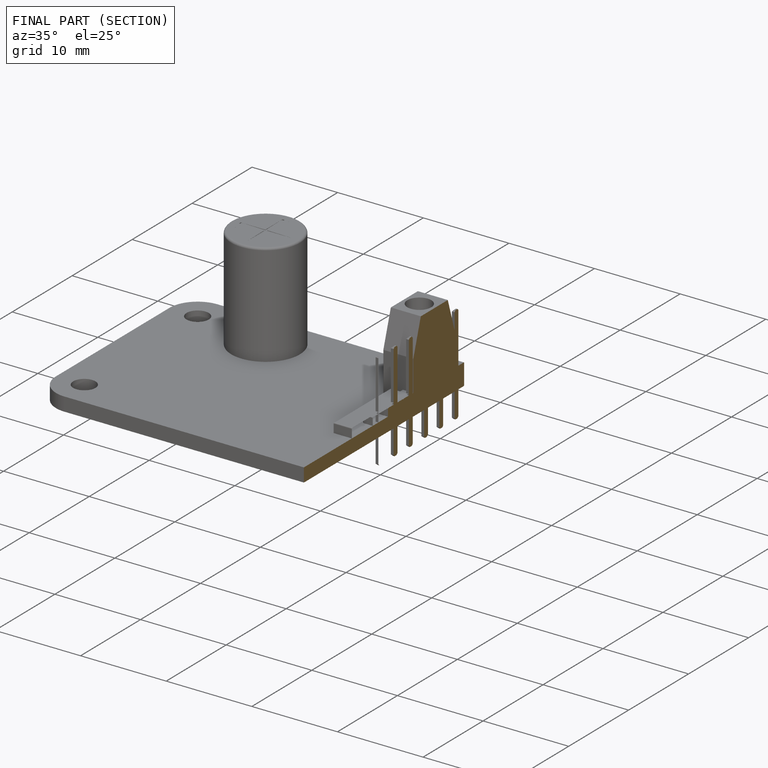
[diagram: finished part — half-section view (interior)]
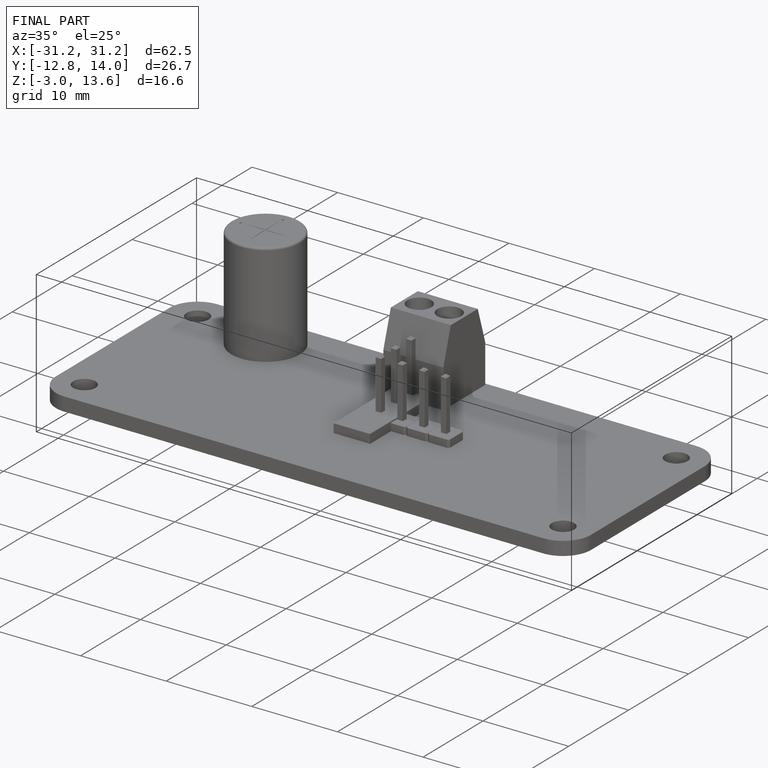
[diagram: finished part — iso view with bounding-box wireframe]
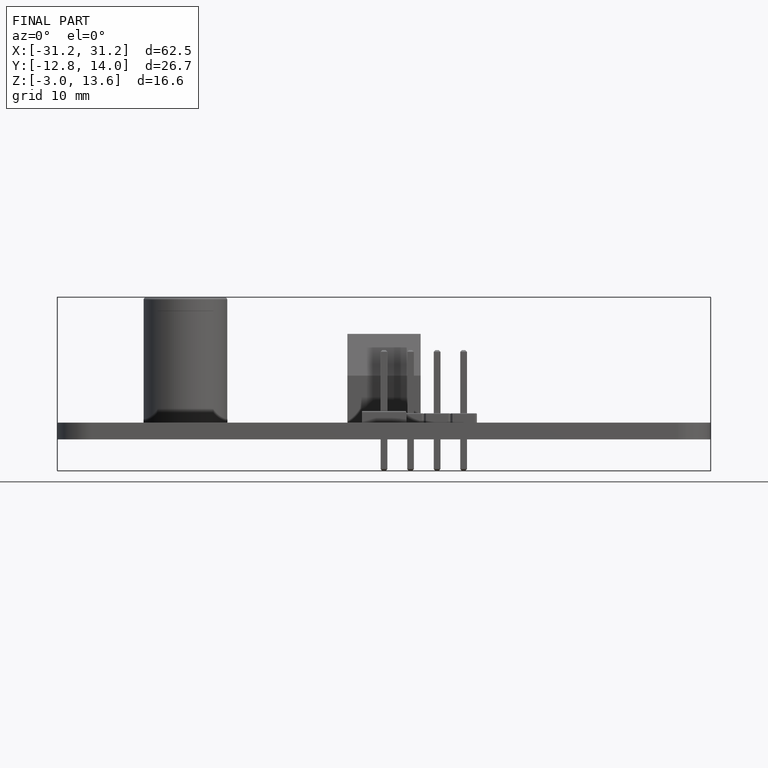
[diagram: finished part — front view with bounding-box wireframe]
